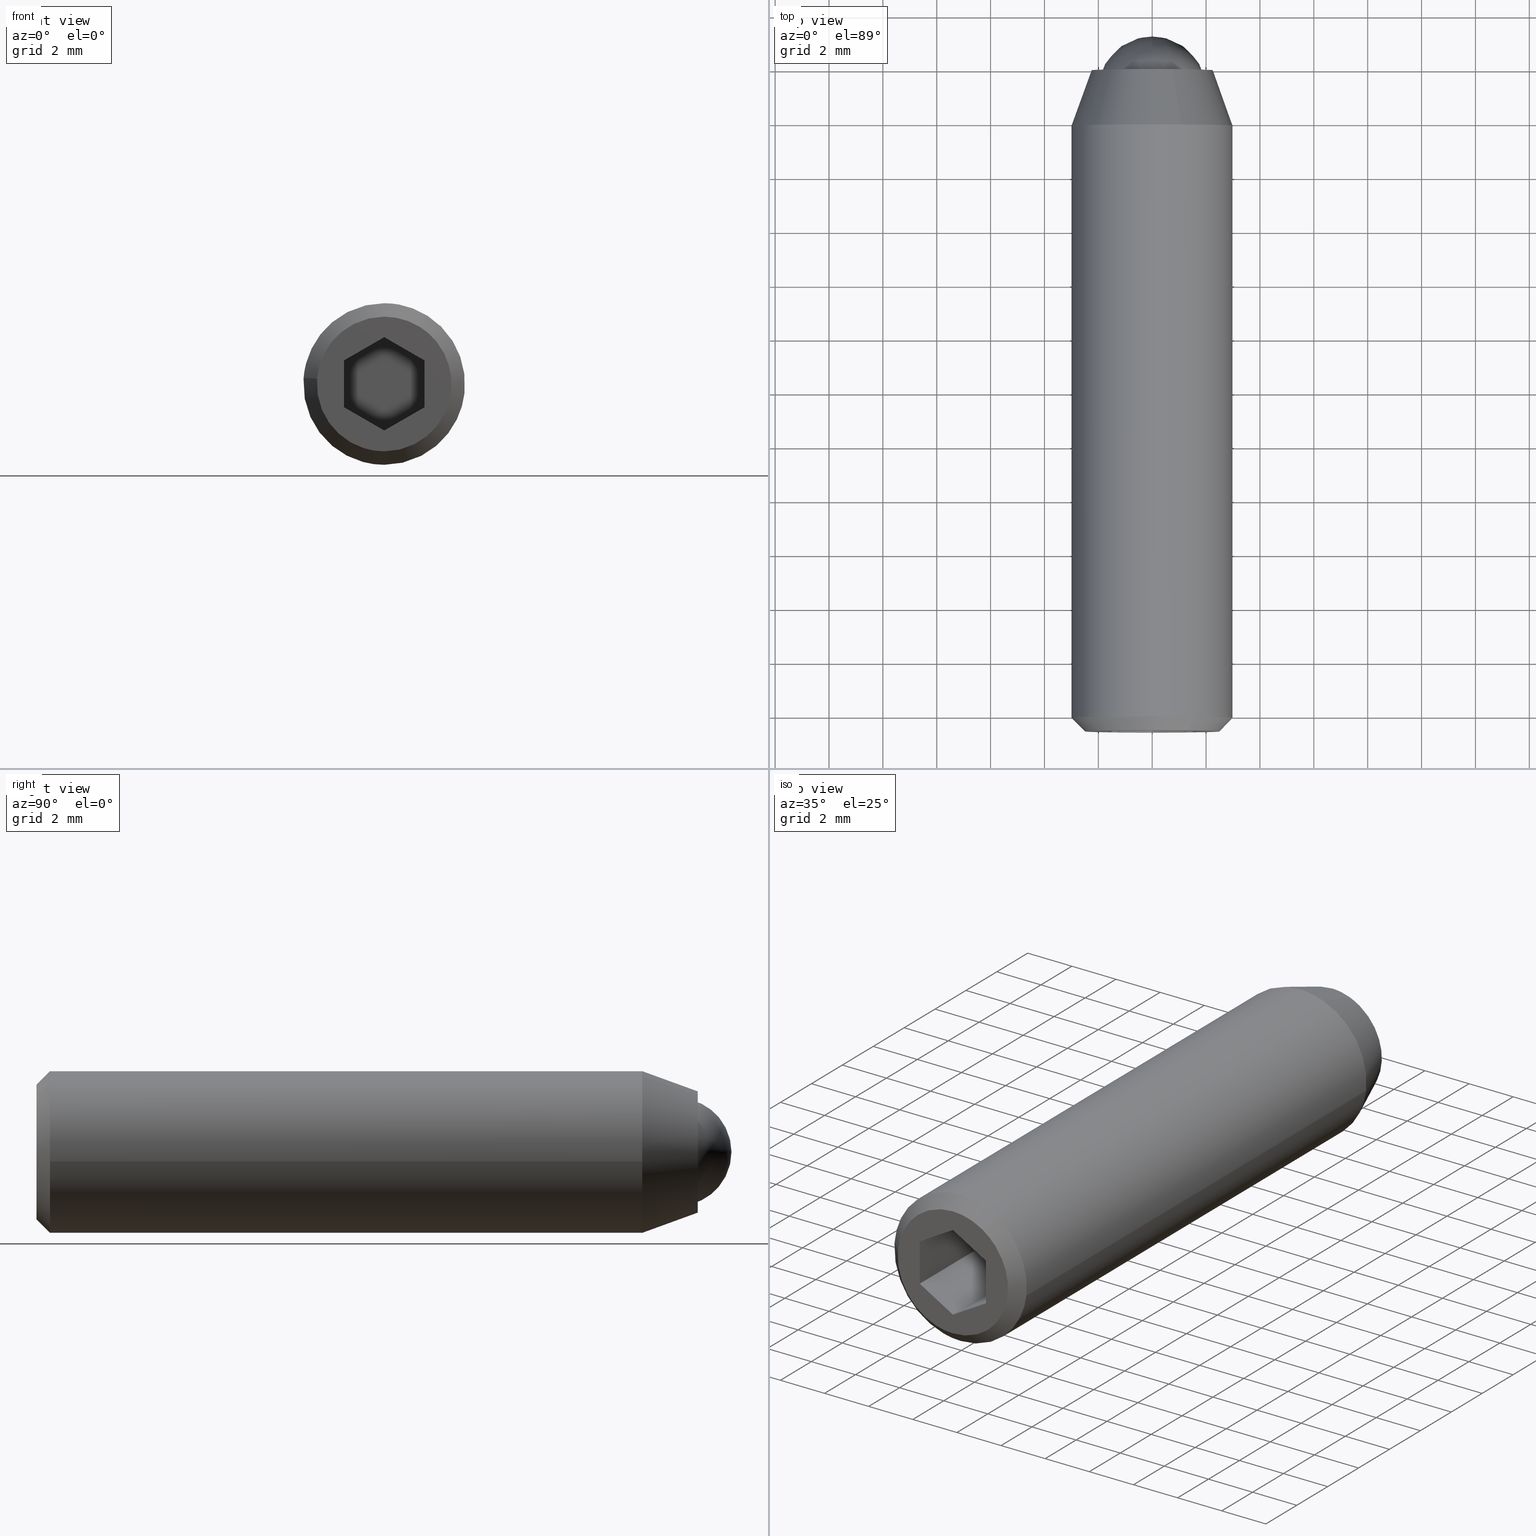
[diagram: canonical four-view strip — front | top / right | iso, engineering-drawing reading convention]
A machine part, canonical four-view strip (front | top / right | iso — engineering-drawing reading convention). The complete STEP part file that produces these views, byte-faithful:
ISO-10303-21;
HEADER;
/****************************************************************
 * Generated by software with PDE/Lib inside                    *
 * PDElib Version 4.4.1-0003, patched  Thursday August 19 11:58 *
 * International Technegroup Inc. (www.iti-oh.com)              *
 ****************************************************************/
FILE_DESCRIPTION((''),'2;1');
FILE_NAME('','2005-07-15T11:50:39',(''),(''),'','CADfix','');
FILE_SCHEMA(('AUTOMOTIVE_DESIGN'));
ENDSEC;
DATA;
#5=APPLICATION_CONTEXT('automotive design');
#6=APPLICATION_PROTOCOL_DEFINITION('Draft International Standard','automotive_design',1998,#5);
#7=PRODUCT_CONTEXT('None',#5,'mechanical');
#8=PRODUCT('body','','None',(#7));
#9=PRODUCT_RELATED_PRODUCT_CATEGORY('part','description',(#8));
#10=PRODUCT_DEFINITION_FORMATION('None','None',#8);
#11=PRODUCT_DEFINITION_CONTEXT('part definition',#5,'design');
#12=PRODUCT_DEFINITION('None','None',#10,#11);
#18=(NAMED_UNIT(*)PLANE_ANGLE_UNIT()SI_UNIT($,.RADIAN.));
#19=DIMENSIONAL_EXPONENTS(0.0,0.0,0.0,0.0,0.0,0.0,0.0);
#20=PLANE_ANGLE_MEASURE_WITH_UNIT(PLANE_ANGLE_MEASURE(0.017453292500000),#18);
#24=(CONVERSION_BASED_UNIT('DEGREE',#20)NAMED_UNIT(#19)PLANE_ANGLE_UNIT());
#28=(NAMED_UNIT(*)SI_UNIT($,.STERADIAN.)SOLID_ANGLE_UNIT());
#32=(LENGTH_UNIT()NAMED_UNIT(*)SI_UNIT(.MILLI.,.METRE.));
#34=UNCERTAINTY_MEASURE_WITH_UNIT(LENGTH_MEASURE(0.001000000000000),#32,'DISTANCE_ACCURACY_VALUE','');
#36=(GEOMETRIC_REPRESENTATION_CONTEXT(3)GLOBAL_UNCERTAINTY_ASSIGNED_CONTEXT((#34))GLOBAL_UNIT_ASSIGNED_CONTEXT((#24,#28,#32))REPRESENTATION_CONTEXT('None','None'));
#37=AXIS2_PLACEMENT_3D('',#38,#39,#40);
#38=CARTESIAN_POINT('',(0.0,0.0,0.0));
#39=DIRECTION('',(0.0,0.0,1.0));
#40=DIRECTION('',(1.0,0.0,0.0));
#41=ADVANCED_BREP_SHAPE_REPRESENTATION('',(#37,#953,#1164),#36);
#42=PRODUCT_DEFINITION_SHAPE('','',#12);
#43=SHAPE_DEFINITION_REPRESENTATION(#42,#41);
#44=CARTESIAN_POINT('',(-1.986019052727332,0.100000000000000,0.236068469313517));
#45=CARTESIAN_POINT('',(-1.992775230897211,0.100000000000000,0.179229457275955));
#46=CARTESIAN_POINT('',(-1.996269596843733,0.100000000000000,0.122097079069714));
#47=CARTESIAN_POINT('',(-2.118366675913447,0.100000000000000,-1.874172517774020));
#48=CARTESIAN_POINT('',(-0.122097079069714,0.100000000000000,-1.996269596843733));
#49=CARTESIAN_POINT('',(1.874172517774020,0.100000000000000,-2.118366675913447));
#50=CARTESIAN_POINT('',(1.996269596843733,0.100000000000000,-0.122097079069714));
#51=CARTESIAN_POINT('',(-1.986019052727332,-4.102500000000001,0.236068469313517));
#52=CARTESIAN_POINT('',(-1.992775230897211,-4.102500000000000,0.179229457275955));
#53=CARTESIAN_POINT('',(-1.996269596843733,-4.102500000000000,0.122097079069714));
#54=CARTESIAN_POINT('',(-2.118366675913447,-4.102499999999999,-1.874172517774020));
#55=CARTESIAN_POINT('',(-0.122097079069714,-4.102500000000000,-1.996269596843733));
#56=CARTESIAN_POINT('',(1.874172517774020,-4.102499999999999,-2.118366675913447));
#57=CARTESIAN_POINT('',(1.996269596843733,-4.102500000000000,-0.122097079069714));
#65=(BOUNDED_SURFACE()B_SPLINE_SURFACE(2,1,((#44,#51),(#45,#52),(#46,#53),(#47,#54),(#48,#55),(#49,#56),(#50,#57)),.UNSPECIFIED.,.F.,.F.,.U.)B_SPLINE_SURFACE_WITH_KNOTS((3,2,2,3),(2,2),(0.0,0.132548339959391,3.446256838944149,6.759965337928908),(0.0,4.202500000000001),.UNSPECIFIED.)GEOMETRIC_REPRESENTATION_ITEM()RATIONAL_B_SPLINE_SURFACE(((0.977505800795127,0.977505800795127),(0.988284271247462,0.988284271247462),(1.0,1.0),(0.707106781186548,0.707106781186548),(1.0,1.0),(0.707106781186548,0.707106781186548),(1.0,1.0)))REPRESENTATION_ITEM('')SURFACE());
#66=CARTESIAN_POINT('',(-1.986019052726100,-4.0,0.236068469323887));
#67=VERTEX_POINT('',#66);
#68=CARTESIAN_POINT('',(0.0,-4.0,-2.0));
#69=VERTEX_POINT('',#68);
#70=CARTESIAN_POINT('',(-1.986019052726100,-4.0,0.236068469323887));
#71=CARTESIAN_POINT('',(-2.000000000000000,-4.0,0.118448239314300));
#72=CARTESIAN_POINT('',(-2.0,-4.0,0.0));
#73=CARTESIAN_POINT('',(-2.000000000000000,-4.000000000000000,-2.000000000000000));
#74=CARTESIAN_POINT('',(0.0,-4.0,-2.0));
#82=(BOUNDED_CURVE()B_SPLINE_CURVE(2,(#70,#71,#72,#73,#74),.UNSPECIFIED.,.F.,.U.)B_SPLINE_CURVE_WITH_KNOTS((3,2,3),(0.229562473513879,0.250000000000000,0.500000000000000),.UNSPECIFIED.)CURVE()GEOMETRIC_REPRESENTATION_ITEM()RATIONAL_B_SPLINE_CURVE((0.956026754184427,0.976055948331580,1.0,0.707106781186548,1.0))REPRESENTATION_ITEM(''));
#83=EDGE_CURVE('',#67,#69,#82,.T.);
#84=ORIENTED_EDGE('',*,*,#83,.T.);
#85=CARTESIAN_POINT('',(1.996269596842803,-4.0,-0.122097079084937));
#86=VERTEX_POINT('',#85);
#87=CARTESIAN_POINT('',(0.0,-4.0,-2.0));
#88=CARTESIAN_POINT('',(1.881412133782633,-4.0,-2.000000000000000));
#89=CARTESIAN_POINT('',(1.996269596842803,-4.000000000000001,-0.122097079084937));
#97=(BOUNDED_CURVE()B_SPLINE_CURVE(2,(#87,#88,#89),.UNSPECIFIED.,.F.,.U.)B_SPLINE_CURVE_WITH_KNOTS((3,3),(0.500000000000000,0.739332962239336),.UNSPECIFIED.)CURVE()GEOMETRIC_REPRESENTATION_ITEM()RATIONAL_B_SPLINE_CURVE((1.0,0.719603993286250,0.976072041667560))REPRESENTATION_ITEM(''));
#98=EDGE_CURVE('',#69,#86,#97,.T.);
#99=ORIENTED_EDGE('',*,*,#98,.T.);
#100=CARTESIAN_POINT('',(1.996269596842803,1.387779E-016,-0.122097079084937));
#101=VERTEX_POINT('',#100);
#102=CARTESIAN_POINT('',(1.996269596842803,1.387779E-016,-0.122097079084937));
#103=CARTESIAN_POINT('',(1.996269596842803,-4.0,-0.122097079084937));
#104=QUASI_UNIFORM_CURVE('',1,(#102,#103),.UNSPECIFIED.,.F.,.U.);
#105=EDGE_CURVE('',#101,#86,#104,.T.);
#106=ORIENTED_EDGE('',*,*,#105,.F.);
#107=CARTESIAN_POINT('',(0.0,0.0,-2.0));
#108=VERTEX_POINT('',#107);
#109=CARTESIAN_POINT('',(0.0,0.0,-2.0));
#110=CARTESIAN_POINT('',(1.881412133782633,0.0,-2.000000000000000));
#111=CARTESIAN_POINT('',(1.996269596842803,1.387779E-016,-0.122097079084937));
#119=(BOUNDED_CURVE()B_SPLINE_CURVE(2,(#109,#110,#111),.UNSPECIFIED.,.F.,.U.)B_SPLINE_CURVE_WITH_KNOTS((3,3),(0.500000000000000,0.739332962239336),.UNSPECIFIED.)CURVE()GEOMETRIC_REPRESENTATION_ITEM()RATIONAL_B_SPLINE_CURVE((1.0,0.719603993286250,0.976072041667560))REPRESENTATION_ITEM(''));
#120=EDGE_CURVE('',#108,#101,#119,.T.);
#121=ORIENTED_EDGE('',*,*,#120,.F.);
#122=CARTESIAN_POINT('',(-1.986019052726100,1.419714E-016,0.236068469323887));
#123=VERTEX_POINT('',#122);
#124=CARTESIAN_POINT('',(-1.986019052726100,1.419714E-016,0.236068469323887));
#125=CARTESIAN_POINT('',(-2.000000000000000,0.0,0.118448239314300));
#126=CARTESIAN_POINT('',(-2.0,0.0,0.0));
#127=CARTESIAN_POINT('',(-2.000000000000000,0.0,-2.000000000000000));
#128=CARTESIAN_POINT('',(0.0,0.0,-2.0));
#136=(BOUNDED_CURVE()B_SPLINE_CURVE(2,(#124,#125,#126,#127,#128),.UNSPECIFIED.,.F.,.U.)B_SPLINE_CURVE_WITH_KNOTS((3,2,3),(0.229562473513879,0.250000000000000,0.500000000000000),.UNSPECIFIED.)CURVE()GEOMETRIC_REPRESENTATION_ITEM()RATIONAL_B_SPLINE_CURVE((0.956026754184427,0.976055948331580,1.0,0.707106781186548,1.0))REPRESENTATION_ITEM(''));
#137=EDGE_CURVE('',#123,#108,#136,.T.);
#138=ORIENTED_EDGE('',*,*,#137,.F.);
#139=CARTESIAN_POINT('',(-1.986019052726100,1.419714E-016,0.236068469323887));
#140=CARTESIAN_POINT('',(-1.986019052726100,-4.0,0.236068469323887));
#141=QUASI_UNIFORM_CURVE('',1,(#139,#140),.UNSPECIFIED.,.F.,.U.);
#142=EDGE_CURVE('',#123,#67,#141,.T.);
#143=ORIENTED_EDGE('',*,*,#142,.T.);
#144=EDGE_LOOP('',(#84,#99,#106,#121,#138,#143));
#145=FACE_OUTER_BOUND('',#144,.T.);
#146=ADVANCED_FACE('',(#145),#65,.F.);
#147=CARTESIAN_POINT('',(1.996269596843733,0.100000000000000,-0.122097079069714));
#148=CARTESIAN_POINT('',(2.118366675913447,0.100000000000000,1.874172517774020));
#149=CARTESIAN_POINT('',(0.122097079069714,0.100000000000000,1.996269596843733));
#150=CARTESIAN_POINT('',(-1.763086981679002,0.100000000000000,2.111572393465055));
#151=CARTESIAN_POINT('',(-1.986019052727332,0.100000000000000,0.236068469313517));
#152=CARTESIAN_POINT('',(1.996269596843733,-4.102500000000000,-0.122097079069714));
#153=CARTESIAN_POINT('',(2.118366675913447,-4.102499999999999,1.874172517774020));
#154=CARTESIAN_POINT('',(0.122097079069714,-4.102500000000000,1.996269596843733));
#155=CARTESIAN_POINT('',(-1.763086981679002,-4.102500000000000,2.111572393465055));
#156=CARTESIAN_POINT('',(-1.986019052727332,-4.102500000000001,0.236068469313517));
#164=(BOUNDED_SURFACE()B_SPLINE_SURFACE(2,1,((#147,#152),(#148,#153),(#149,#154),(#150,#155),(#151,#156)),.UNSPECIFIED.,.F.,.F.,.U.)B_SPLINE_SURFACE_WITH_KNOTS((3,2,3),(2,2),(0.0,3.313708498984759,6.494868658010128),(0.0,4.202500000000001),.UNSPECIFIED.)GEOMETRIC_REPRESENTATION_ITEM()RATIONAL_B_SPLINE_SURFACE(((1.0,1.0),(0.707106781186548,0.707106781186548),(1.0,1.0),(0.718822509939086,0.718822509939086),(0.977505800795127,0.977505800795127)))REPRESENTATION_ITEM('')SURFACE());
#165=CARTESIAN_POINT('',(0.0,-4.0,2.0));
#166=VERTEX_POINT('',#165);
#167=CARTESIAN_POINT('',(0.0,-4.0,2.0));
#168=CARTESIAN_POINT('',(-1.776349051884055,-4.0,2.000000000000000));
#169=CARTESIAN_POINT('',(-1.986019052726100,-4.0,0.236068469323887));
#177=(BOUNDED_CURVE()B_SPLINE_CURVE(2,(#167,#168,#169),.UNSPECIFIED.,.F.,.U.)B_SPLINE_CURVE_WITH_KNOTS((3,3),(0.0,0.229562473513880),.UNSPECIFIED.)CURVE()GEOMETRIC_REPRESENTATION_ITEM()RATIONAL_B_SPLINE_CURVE((1.0,0.731050832854968,0.956026754184427))REPRESENTATION_ITEM(''));
#178=EDGE_CURVE('',#166,#67,#177,.T.);
#179=ORIENTED_EDGE('',*,*,#178,.T.);
#180=ORIENTED_EDGE('',*,*,#142,.F.);
#181=CARTESIAN_POINT('',(0.0,0.0,2.0));
#182=VERTEX_POINT('',#181);
#183=CARTESIAN_POINT('',(0.0,0.0,2.0));
#184=CARTESIAN_POINT('',(-1.776349051884055,0.0,2.000000000000000));
#185=CARTESIAN_POINT('',(-1.986019052726100,1.419714E-016,0.236068469323887));
#193=(BOUNDED_CURVE()B_SPLINE_CURVE(2,(#183,#184,#185),.UNSPECIFIED.,.F.,.U.)B_SPLINE_CURVE_WITH_KNOTS((3,3),(0.0,0.229562473513880),.UNSPECIFIED.)CURVE()GEOMETRIC_REPRESENTATION_ITEM()RATIONAL_B_SPLINE_CURVE((1.0,0.731050832854968,0.956026754184427))REPRESENTATION_ITEM(''));
#194=EDGE_CURVE('',#182,#123,#193,.T.);
#195=ORIENTED_EDGE('',*,*,#194,.F.);
#196=CARTESIAN_POINT('',(1.996269596842803,1.387779E-016,-0.122097079084937));
#197=CARTESIAN_POINT('',(2.000000000000000,0.0,-0.061105526612444));
#198=CARTESIAN_POINT('',(2.0,0.0,0.0));
#199=CARTESIAN_POINT('',(2.000000000000000,0.0,2.000000000000000));
#200=CARTESIAN_POINT('',(0.0,0.0,2.0));
#208=(BOUNDED_CURVE()B_SPLINE_CURVE(2,(#196,#197,#198,#199,#200),.UNSPECIFIED.,.F.,.U.)B_SPLINE_CURVE_WITH_KNOTS((3,2,3),(0.739332962239337,0.750000000000000,1.0),.UNSPECIFIED.)CURVE()GEOMETRIC_REPRESENTATION_ITEM()RATIONAL_B_SPLINE_CURVE((0.976072041667562,0.987502787900299,1.0,0.707106781186548,1.0))REPRESENTATION_ITEM(''));
#209=EDGE_CURVE('',#101,#182,#208,.T.);
#210=ORIENTED_EDGE('',*,*,#209,.F.);
#211=ORIENTED_EDGE('',*,*,#105,.T.);
#212=CARTESIAN_POINT('',(1.996269596842803,-4.000000000000001,-0.122097079084937));
#213=CARTESIAN_POINT('',(2.000000000000000,-4.000000000000001,-0.061105526612444));
#214=CARTESIAN_POINT('',(2.0,-4.0,0.0));
#215=CARTESIAN_POINT('',(2.000000000000000,-4.000000000000000,2.000000000000000));
#216=CARTESIAN_POINT('',(0.0,-4.0,2.0));
#224=(BOUNDED_CURVE()B_SPLINE_CURVE(2,(#212,#213,#214,#215,#216),.UNSPECIFIED.,.F.,.U.)B_SPLINE_CURVE_WITH_KNOTS((3,2,3),(0.739332962239337,0.750000000000000,1.0),.UNSPECIFIED.)CURVE()GEOMETRIC_REPRESENTATION_ITEM()RATIONAL_B_SPLINE_CURVE((0.976072041667562,0.987502787900299,1.0,0.707106781186548,1.0))REPRESENTATION_ITEM(''));
#225=EDGE_CURVE('',#86,#166,#224,.T.);
#226=ORIENTED_EDGE('',*,*,#225,.T.);
#227=EDGE_LOOP('',(#179,#180,#195,#210,#211,#226));
#228=FACE_OUTER_BOUND('',#227,.T.);
#229=ADVANCED_FACE('',(#228),#164,.F.);
#230=CARTESIAN_POINT('',(1.337903848697429,-24.562499999999996,2.097062121550188));
#231=CARTESIAN_POINT('',(2.597013232677684,-24.562499999999996,1.293763414541468));
#232=CARTESIAN_POINT('',(2.479831867661150,-24.562500000000000,-0.195167000623016));
#233=CARTESIAN_POINT('',(2.284664867038134,-24.562500000000007,-2.674998868284166));
#234=CARTESIAN_POINT('',(-0.195167000623015,-24.562500000000000,-2.479831867661151));
#235=CARTESIAN_POINT('',(-2.674998868284166,-24.562500000000007,-2.284664867038136));
#236=CARTESIAN_POINT('',(-2.479831867661150,-24.562500000000000,0.195167000623015));
#237=CARTESIAN_POINT('',(1.620443593629644,-24.037187499999987,2.539921597219278));
#238=CARTESIAN_POINT('',(3.145452836211766,-24.037187499999995,1.566981542662605));
#239=CARTESIAN_POINT('',(3.003525004537846,-24.037187500000002,-0.236382544347551));
#240=CARTESIAN_POINT('',(2.767142460190296,-24.037187499999995,-3.239907548885397));
#241=CARTESIAN_POINT('',(-0.236382544347550,-24.037187500000002,-3.003525004537847));
#242=CARTESIAN_POINT('',(-3.239907548885395,-24.037187499999995,-2.767142460190296));
#243=CARTESIAN_POINT('',(-3.003525004537846,-24.037187500000002,0.236382544347549));
#251=(BOUNDED_SURFACE()B_SPLINE_SURFACE(2,1,((#230,#237),(#231,#238),(#232,#239),(#233,#240),(#234,#241),(#235,#242),(#236,#243)),.UNSPECIFIED.,.F.,.F.,.U.)B_SPLINE_SURFACE_WITH_KNOTS((3,2,2,3),(2,2),(0.0,3.394418011613164,8.386209205161936,13.378000398710711),(0.0,1.0),.UNSPECIFIED.)GEOMETRIC_REPRESENTATION_ITEM()RATIONAL_B_SPLINE_SURFACE(((0.872532871172386,0.872532871172386),(0.800832611206852,0.800832611206852),(1.0,1.0),(0.707106781186548,0.707106781186548),(1.0,1.0),(0.707106781186548,0.707106781186548),(1.0,1.0)))REPRESENTATION_ITEM('')SURFACE());
#252=CARTESIAN_POINT('',(2.979029056470349,-24.049999999999990,-0.354098687782129));
#253=VERTEX_POINT('',#252);
#254=CARTESIAN_POINT('',(1.613552380351205,-24.049999999999251,2.529120146586055));
#255=VERTEX_POINT('',#254);
#256=CARTESIAN_POINT('',(2.979029056470349,-24.049999999999994,-0.354098687782129));
#257=CARTESIAN_POINT('',(3.000000000000000,-24.050000000000001,-0.177670329632749));
#258=CARTESIAN_POINT('',(3.0,-24.050000000000001,-6.765950E-016));
#259=CARTESIAN_POINT('',(3.0,-24.049999999999997,1.644580968025334));
#260=CARTESIAN_POINT('',(1.613552380351205,-24.049999999999251,2.529120146586055));
#268=(BOUNDED_CURVE()B_SPLINE_CURVE(2,(#256,#257,#258,#259,#260),.UNSPECIFIED.,.F.,.U.)B_SPLINE_CURVE_WITH_KNOTS((3,2,3),(0.229562701358004,0.250000000000000,0.407950112626098),.UNSPECIFIED.)CURVE()GEOMETRIC_REPRESENTATION_ITEM()RATIONAL_B_SPLINE_CURVE((0.956027200768721,0.976056215267575,1.0,0.814949932403979,0.863729296954027))REPRESENTATION_ITEM(''));
#269=EDGE_CURVE('',#253,#255,#268,.T.);
#270=ORIENTED_EDGE('',*,*,#269,.T.);
#271=CARTESIAN_POINT('',(1.344626983622767,-24.549999999999550,2.107600122156899));
#272=VERTEX_POINT('',#271);
#273=CARTESIAN_POINT('',(1.344626983622767,-24.549999999999550,2.107600122156899));
#274=CARTESIAN_POINT('',(1.613552380351205,-24.049999999999251,2.529120146586055));
#275=QUASI_UNIFORM_CURVE('',1,(#273,#274),.UNSPECIFIED.,.F.,.U.);
#276=EDGE_CURVE('',#272,#255,#275,.T.);
#277=ORIENTED_EDGE('',*,*,#276,.F.);
#278=CARTESIAN_POINT('',(0.0,-24.550000000000001,-2.500000000000001));
#279=VERTEX_POINT('',#278);
#280=CARTESIAN_POINT('',(0.0,-24.550000000000001,-2.500000000000001));
#281=CARTESIAN_POINT('',(2.500000000000000,-24.549999999999997,-2.500000000000001));
#282=CARTESIAN_POINT('',(2.500000000000000,-24.550000000000001,-6.765950E-016));
#283=CARTESIAN_POINT('',(2.500000000000001,-24.549999999999997,1.370484140025952));
#284=CARTESIAN_POINT('',(1.344626983622767,-24.549999999999553,2.107600122156898));
#292=(BOUNDED_CURVE()B_SPLINE_CURVE(2,(#280,#281,#282,#283,#284),.UNSPECIFIED.,.F.,.U.)B_SPLINE_CURVE_WITH_KNOTS((3,2,3),(0.0,0.250000000000000,0.407950112626553),.UNSPECIFIED.)CURVE()GEOMETRIC_REPRESENTATION_ITEM()RATIONAL_B_SPLINE_CURVE((1.0,0.707106781186548,1.0,0.814949932403446,0.863729296954308))REPRESENTATION_ITEM(''));
#293=EDGE_CURVE('',#279,#272,#292,.T.);
#294=ORIENTED_EDGE('',*,*,#293,.F.);
#295=CARTESIAN_POINT('',(-2.492293334333787,-24.549999999997588,0.196147739338082));
#296=VERTEX_POINT('',#295);
#297=CARTESIAN_POINT('',(-2.492293334333788,-24.549999999997581,0.196147739338082));
#298=CARTESIAN_POINT('',(-2.500000000000000,-24.549999999999994,0.098225267537538));
#299=CARTESIAN_POINT('',(-2.500000000000000,-24.550000000000001,-6.765950E-016));
#300=CARTESIAN_POINT('',(-2.500000000000000,-24.549999999999997,-2.500000000000001));
#301=CARTESIAN_POINT('',(0.0,-24.550000000000001,-2.500000000000001));
#309=(BOUNDED_CURVE()B_SPLINE_CURVE(2,(#297,#298,#299,#300,#301),.UNSPECIFIED.,.F.,.U.)B_SPLINE_CURVE_WITH_KNOTS((3,2,3),(0.736331300630252,0.750000000000000,1.0),.UNSPECIFIED.)CURVE()GEOMETRIC_REPRESENTATION_ITEM()RATIONAL_B_SPLINE_CURVE((0.969723356166568,0.983986122578405,1.0,0.707106781186548,1.0))REPRESENTATION_ITEM(''));
#310=EDGE_CURVE('',#296,#279,#309,.T.);
#311=ORIENTED_EDGE('',*,*,#310,.F.);
#312=CARTESIAN_POINT('',(-2.990752001202611,-24.049999999991918,0.235377287245564));
#313=VERTEX_POINT('',#312);
#314=CARTESIAN_POINT('',(-2.492293334333787,-24.549999999997588,0.196147739338082));
#315=CARTESIAN_POINT('',(-2.990752001202611,-24.049999999991918,0.235377287245564));
#316=QUASI_UNIFORM_CURVE('',1,(#314,#315),.UNSPECIFIED.,.F.,.U.);
#317=EDGE_CURVE('',#296,#313,#316,.T.);
#318=ORIENTED_EDGE('',*,*,#317,.T.);
#319=CARTESIAN_POINT('',(-2.994404684975035,-24.050000000000011,0.183140881774212));
#320=VERTEX_POINT('',#319);
#321=CARTESIAN_POINT('',(-2.990752001202611,-24.049999999991911,0.235377287245564));
#322=CARTESIAN_POINT('',(-2.992806293846944,-24.050000000000001,0.209275024229323));
#323=CARTESIAN_POINT('',(-2.994404684975035,-24.050000000000011,0.183140881774212));
#331=(BOUNDED_CURVE()B_SPLINE_CURVE(2,(#321,#322,#323),.UNSPECIFIED.,.F.,.U.)B_SPLINE_CURVE_WITH_KNOTS((3,3),(0.736331300625729,0.739333235192756),.UNSPECIFIED.)CURVE()GEOMETRIC_REPRESENTATION_ITEM()RATIONAL_B_SPLINE_CURVE((0.969723356157127,0.972855760371544,0.976072626659396))REPRESENTATION_ITEM(''));
#332=EDGE_CURVE('',#313,#320,#331,.T.);
#333=ORIENTED_EDGE('',*,*,#332,.T.);
#334=CARTESIAN_POINT('',(0.0,-24.050000000000001,-3.000000000000001));
#335=VERTEX_POINT('',#334);
#336=CARTESIAN_POINT('',(-2.994404684975035,-24.050000000000011,0.183140881774212));
#337=CARTESIAN_POINT('',(-3.0,-24.049999999999997,0.091655914840068));
#338=CARTESIAN_POINT('',(-3.0,-24.050000000000001,-6.765950E-016));
#339=CARTESIAN_POINT('',(-3.0,-24.050000000000004,-3.0));
#340=CARTESIAN_POINT('',(0.0,-24.050000000000001,-3.000000000000001));
#348=(BOUNDED_CURVE()B_SPLINE_CURVE(2,(#336,#337,#338,#339,#340),.UNSPECIFIED.,.F.,.U.)B_SPLINE_CURVE_WITH_KNOTS((3,2,3),(0.739333235192756,0.750000000000000,1.0),.UNSPECIFIED.)CURVE()GEOMETRIC_REPRESENTATION_ITEM()RATIONAL_B_SPLINE_CURVE((0.976072626659396,0.987503107685121,1.0,0.707106781186548,1.0))REPRESENTATION_ITEM(''));
#349=EDGE_CURVE('',#320,#335,#348,.T.);
#350=ORIENTED_EDGE('',*,*,#349,.T.);
#351=CARTESIAN_POINT('',(0.0,-24.050000000000001,-3.000000000000001));
#352=CARTESIAN_POINT('',(2.664527195330646,-24.049999999999997,-3.000000000000001));
#353=CARTESIAN_POINT('',(2.979029056470349,-24.049999999999994,-0.354098687782129));
#361=(BOUNDED_CURVE()B_SPLINE_CURVE(2,(#351,#352,#353),.UNSPECIFIED.,.F.,.U.)B_SPLINE_CURVE_WITH_KNOTS((3,3),(0.0,0.229562701358004),.UNSPECIFIED.)CURVE()GEOMETRIC_REPRESENTATION_ITEM()RATIONAL_B_SPLINE_CURVE((1.0,0.731050565918972,0.956027200768721))REPRESENTATION_ITEM(''));
#362=EDGE_CURVE('',#335,#253,#361,.T.);
#363=ORIENTED_EDGE('',*,*,#362,.T.);
#364=EDGE_LOOP('',(#270,#277,#294,#311,#318,#333,#350,#363));
#365=FACE_OUTER_BOUND('',#364,.T.);
#366=ADVANCED_FACE('',(#365),#251,.T.);
#367=CARTESIAN_POINT('',(-2.479831867661150,-24.562500000000000,0.195167000623015));
#368=CARTESIAN_POINT('',(-2.284664867038134,-24.562500000000007,2.674998868284166));
#369=CARTESIAN_POINT('',(0.195167000623015,-24.562500000000000,2.479831867661150));
#370=CARTESIAN_POINT('',(0.814319478020442,-24.562500000000007,2.431103510905281));
#371=CARTESIAN_POINT('',(1.337903848697429,-24.562499999999996,2.097062121550188));
#372=CARTESIAN_POINT('',(-3.003525004537846,-24.037187500000002,0.236382544347549));
#373=CARTESIAN_POINT('',(-2.767142460190296,-24.037187499999995,3.239907548885395));
#374=CARTESIAN_POINT('',(0.236382544347550,-24.037187500000002,3.003525004537845));
#375=CARTESIAN_POINT('',(0.986288201959185,-24.037187499999995,2.944506149326371));
#376=CARTESIAN_POINT('',(1.620443593629644,-24.037187499999987,2.539921597219278));
#384=(BOUNDED_SURFACE()B_SPLINE_SURFACE(2,1,((#367,#372),(#368,#373),(#369,#374),(#370,#375),(#371,#376)),.UNSPECIFIED.,.F.,.F.,.U.)B_SPLINE_SURFACE_WITH_KNOTS((3,2,3),(2,2),(0.0,4.991791193548773,6.589164375484380),(0.0,1.0),.UNSPECIFIED.)GEOMETRIC_REPRESENTATION_ITEM()RATIONAL_B_SPLINE_SURFACE(((1.0,1.0),(0.707106781186548,0.707106781186548),(1.0,1.0),(0.906274169979695,0.906274169979695),(0.872532871172386,0.872532871172386)))REPRESENTATION_ITEM('')SURFACE());
#385=CARTESIAN_POINT('',(0.0,-24.050000000000001,2.999999999999999));
#386=VERTEX_POINT('',#385);
#387=CARTESIAN_POINT('',(1.613552380351205,-24.049999999999251,2.529120146586055));
#388=CARTESIAN_POINT('',(0.875484166153485,-24.050000000000001,2.999999999999999));
#389=CARTESIAN_POINT('',(0.0,-24.050000000000001,2.999999999999999));
#397=(BOUNDED_CURVE()B_SPLINE_CURVE(2,(#387,#388,#389),.UNSPECIFIED.,.F.,.U.)B_SPLINE_CURVE_WITH_KNOTS((3,3),(0.407950112626098,0.500000000000000),.UNSPECIFIED.)CURVE()GEOMETRIC_REPRESENTATION_ITEM()RATIONAL_B_SPLINE_CURVE((0.863729296954027,0.892156848782568,1.0))REPRESENTATION_ITEM(''));
#398=EDGE_CURVE('',#255,#386,#397,.T.);
#399=ORIENTED_EDGE('',*,*,#398,.T.);
#400=CARTESIAN_POINT('',(0.0,-24.050000000000001,2.999999999999999));
#401=CARTESIAN_POINT('',(-2.773171474860424,-24.049999999999997,2.999999999999999));
#402=CARTESIAN_POINT('',(-2.990752001202611,-24.049999999991915,0.235377287245564));
#410=(BOUNDED_CURVE()B_SPLINE_CURVE(2,(#400,#401,#402),.UNSPECIFIED.,.F.,.U.)B_SPLINE_CURVE_WITH_KNOTS((3,3),(0.500000000000000,0.736331300625729),.UNSPECIFIED.)CURVE()GEOMETRIC_REPRESENTATION_ITEM()RATIONAL_B_SPLINE_CURVE((1.0,0.723120658613442,0.969723356157129))REPRESENTATION_ITEM(''));
#411=EDGE_CURVE('',#386,#313,#410,.T.);
#412=ORIENTED_EDGE('',*,*,#411,.T.);
#413=ORIENTED_EDGE('',*,*,#317,.F.);
#414=CARTESIAN_POINT('',(0.0,-24.550000000000001,2.499999999999999));
#415=VERTEX_POINT('',#414);
#416=CARTESIAN_POINT('',(0.0,-24.550000000000001,2.499999999999999));
#417=CARTESIAN_POINT('',(-2.310976229111517,-24.549999999999997,2.499999999999999));
#418=CARTESIAN_POINT('',(-2.492293334333787,-24.549999999997581,0.196147739338082));
#426=(BOUNDED_CURVE()B_SPLINE_CURVE(2,(#416,#417,#418),.UNSPECIFIED.,.F.,.U.)B_SPLINE_CURVE_WITH_KNOTS((3,3),(0.500000000000000,0.736331300630253),.UNSPECIFIED.)CURVE()GEOMETRIC_REPRESENTATION_ITEM()RATIONAL_B_SPLINE_CURVE((1.0,0.723120658608143,0.969723356166568))REPRESENTATION_ITEM(''));
#427=EDGE_CURVE('',#415,#296,#426,.T.);
#428=ORIENTED_EDGE('',*,*,#427,.F.);
#429=CARTESIAN_POINT('',(1.344626983622768,-24.549999999999550,2.107600122156899));
#430=CARTESIAN_POINT('',(0.729570138457195,-24.549999999999997,2.499999999999999));
#431=CARTESIAN_POINT('',(0.0,-24.550000000000001,2.499999999999999));
#439=(BOUNDED_CURVE()B_SPLINE_CURVE(2,(#429,#430,#431),.UNSPECIFIED.,.F.,.U.)B_SPLINE_CURVE_WITH_KNOTS((3,3),(0.407950112626553,0.500000000000000),.UNSPECIFIED.)CURVE()GEOMETRIC_REPRESENTATION_ITEM()RATIONAL_B_SPLINE_CURVE((0.863729296954308,0.892156848783102,1.0))REPRESENTATION_ITEM(''));
#440=EDGE_CURVE('',#272,#415,#439,.T.);
#441=ORIENTED_EDGE('',*,*,#440,.F.);
#442=ORIENTED_EDGE('',*,*,#276,.T.);
#443=EDGE_LOOP('',(#399,#412,#413,#428,#441,#442));
#444=FACE_OUTER_BOUND('',#443,.T.);
#445=ADVANCED_FACE('',(#444),#384,.T.);
#446=CARTESIAN_POINT('',(0.784547605361196,0.051515200000000,2.088770360145418));
#447=CARTESIAN_POINT('',(0.470770214140005,0.051515200000000,2.206625968208495));
#448=CARTESIAN_POINT('',(0.136214553837150,0.051515200000000,2.227088268978792));
#449=CARTESIAN_POINT('',(-2.090873715141643,0.051515200000000,2.363302822815943));
#450=CARTESIAN_POINT('',(-2.227088268978793,0.051515200000000,0.136214553837149));
#451=CARTESIAN_POINT('',(1.061611581120054,-2.113411080000001,2.826422245734585));
#452=CARTESIAN_POINT('',(0.637023308671380,-2.113411080000001,2.985898710342624));
#453=CARTESIAN_POINT('',(0.184318895223757,-2.113411080000001,3.013587298422769));
#454=CARTESIAN_POINT('',(-2.829268403199012,-2.113411080000001,3.197906193646526));
#455=CARTESIAN_POINT('',(-3.013587298422770,-2.113411080000001,0.184318895223756));
#463=(BOUNDED_SURFACE()B_SPLINE_SURFACE(2,1,((#446,#451),(#447,#452),(#448,#453),(#449,#454),(#450,#455)),.UNSPECIFIED.,.F.,.F.,.U.)B_SPLINE_SURFACE_WITH_KNOTS((3,2,3),(2,2),(0.0,1.000481083216914,6.002886499301483),(0.0,2.303866434672635),.UNSPECIFIED.)GEOMETRIC_REPRESENTATION_ITEM()RATIONAL_B_SPLINE_SURFACE(((0.906274169979695,0.906274169979695),(0.941421356237309,0.941421356237309),(1.0,1.0),(0.707106781186548,0.707106781186548),(1.0,1.0)))REPRESENTATION_ITEM('')SURFACE());
#464=CARTESIAN_POINT('',(1.054853923190107,-2.060608000002979,2.808430736325349));
#465=VERTEX_POINT('',#464);
#466=CARTESIAN_POINT('',(0.0,-2.060608000000000,2.999999999999999));
#467=VERTEX_POINT('',#466);
#468=CARTESIAN_POINT('',(1.054853923190107,-2.060608000002980,2.808430736325348));
#469=CARTESIAN_POINT('',(0.544822158216843,-2.060608000000000,2.999999999999999));
#470=CARTESIAN_POINT('',(0.0,-2.060608000000000,2.999999999999999));
#478=(BOUNDED_CURVE()B_SPLINE_CURVE(2,(#468,#469,#470),.UNSPECIFIED.,.F.,.U.)B_SPLINE_CURVE_WITH_KNOTS((3,3),(0.440284170897221,0.500000000000000),.UNSPECIFIED.)CURVE()GEOMETRIC_REPRESENTATION_ITEM()RATIONAL_B_SPLINE_CURVE((0.893499554633700,0.930038554399892,1.0))REPRESENTATION_ITEM(''));
#479=EDGE_CURVE('',#465,#467,#478,.T.);
#480=ORIENTED_EDGE('',*,*,#479,.F.);
#481=CARTESIAN_POINT('',(0.791140442397695,-3.218887E-012,2.106323052242475));
#482=VERTEX_POINT('',#481);
#483=CARTESIAN_POINT('',(0.791140442397695,-3.218887E-012,2.106323052242475));
#484=CARTESIAN_POINT('',(1.054853923190107,-2.060608000002979,2.808430736325349));
#485=QUASI_UNIFORM_CURVE('',1,(#483,#484),.UNSPECIFIED.,.F.,.U.);
#486=EDGE_CURVE('',#482,#465,#485,.T.);
#487=ORIENTED_EDGE('',*,*,#486,.F.);
#488=CARTESIAN_POINT('',(0.0,0.0,2.249999999999999));
#489=VERTEX_POINT('',#488);
#490=CARTESIAN_POINT('',(0.791140442397695,-3.218887E-012,2.106323052242474));
#491=CARTESIAN_POINT('',(0.408616618668138,0.0,2.249999999999999));
#492=CARTESIAN_POINT('',(0.0,0.0,2.249999999999999));
#500=(BOUNDED_CURVE()B_SPLINE_CURVE(2,(#490,#491,#492),.UNSPECIFIED.,.F.,.U.)B_SPLINE_CURVE_WITH_KNOTS((3,3),(0.440284170896473,0.500000000000000),.UNSPECIFIED.)CURVE()GEOMETRIC_REPRESENTATION_ITEM()RATIONAL_B_SPLINE_CURVE((0.893499554632784,0.930038554399016,1.0))REPRESENTATION_ITEM(''));
#501=EDGE_CURVE('',#482,#489,#500,.T.);
#502=ORIENTED_EDGE('',*,*,#501,.T.);
#503=CARTESIAN_POINT('',(-2.245803296449246,-1.485565E-012,0.137359213961566));
#504=VERTEX_POINT('',#503);
#505=CARTESIAN_POINT('',(0.0,0.0,2.249999999999999));
#506=CARTESIAN_POINT('',(-2.116588650522518,0.0,2.250000000000000));
#507=CARTESIAN_POINT('',(-2.245803296449245,-1.485565E-012,0.137359213961566));
#515=(BOUNDED_CURVE()B_SPLINE_CURVE(2,(#505,#506,#507),.UNSPECIFIED.,.F.,.U.)B_SPLINE_CURVE_WITH_KNOTS((3,3),(0.500000000000000,0.739332962240724),.UNSPECIFIED.)CURVE()GEOMETRIC_REPRESENTATION_ITEM()RATIONAL_B_SPLINE_CURVE((1.0,0.719603993284624,0.976072041670534))REPRESENTATION_ITEM(''));
#516=EDGE_CURVE('',#489,#504,#515,.T.);
#517=ORIENTED_EDGE('',*,*,#516,.T.);
#518=CARTESIAN_POINT('',(-2.994404537156918,-2.060607996040597,0.183143275066042));
#519=VERTEX_POINT('',#518);
#520=CARTESIAN_POINT('',(-2.245803296449246,-1.485565E-012,0.137359213961566));
#521=CARTESIAN_POINT('',(-2.994404537156918,-2.060607996040597,0.183143275066042));
#522=QUASI_UNIFORM_CURVE('',1,(#520,#521),.UNSPECIFIED.,.F.,.U.);
#523=EDGE_CURVE('',#504,#519,#522,.T.);
#524=ORIENTED_EDGE('',*,*,#523,.T.);
#525=CARTESIAN_POINT('',(0.0,-2.060608000000000,2.999999999999999));
#526=CARTESIAN_POINT('',(-2.822120413462678,-2.060608000000000,3.000000000000000));
#527=CARTESIAN_POINT('',(-2.994404537156918,-2.060607996040598,0.183143275066042));
#535=(BOUNDED_CURVE()B_SPLINE_CURVE(2,(#525,#526,#527),.UNSPECIFIED.,.F.,.U.)B_SPLINE_CURVE_WITH_KNOTS((3,3),(0.500000000000000,0.739333097278809),.UNSPECIFIED.)CURVE()GEOMETRIC_REPRESENTATION_ITEM()RATIONAL_B_SPLINE_CURVE((1.0,0.719603835077665,0.976072331083028))REPRESENTATION_ITEM(''));
#536=EDGE_CURVE('',#467,#519,#535,.T.);
#537=ORIENTED_EDGE('',*,*,#536,.F.);
#538=EDGE_LOOP('',(#480,#487,#502,#517,#524,#537));
#539=FACE_OUTER_BOUND('',#538,.T.);
#540=ADVANCED_FACE('',(#539),#463,.T.);
#541=CARTESIAN_POINT('',(-2.227088268978793,0.051515200000000,0.136214553837149));
#542=CARTESIAN_POINT('',(-2.363302822815943,0.051515200000000,-2.090873715141643));
#543=CARTESIAN_POINT('',(-0.136214553837150,0.051515200000000,-2.227088268978794));
#544=CARTESIAN_POINT('',(2.090873715141643,0.051515200000000,-2.363302822815944));
#545=CARTESIAN_POINT('',(2.227088268978793,0.051515200000000,-0.136214553837151));
#546=CARTESIAN_POINT('',(2.327723053527222,0.051515200000000,1.509149629398090));
#547=CARTESIAN_POINT('',(0.784547605361196,0.051515200000000,2.088770360145418));
#548=CARTESIAN_POINT('',(-3.013587298422770,-2.113411080000001,0.184318895223756));
#549=CARTESIAN_POINT('',(-3.197906193646527,-2.113411080000001,-2.829268403199014));
#550=CARTESIAN_POINT('',(-0.184318895223757,-2.113411080000001,-3.013587298422771));
#551=CARTESIAN_POINT('',(2.829268403199012,-2.113411080000001,-3.197906193646527));
#552=CARTESIAN_POINT('',(3.013587298422770,-2.113411080000001,-0.184318895223757));
#553=CARTESIAN_POINT('',(3.149761383985046,-2.113411080000001,2.042107723309473));
#554=CARTESIAN_POINT('',(1.061611581120054,-2.113411080000001,2.826422245734585));
#562=(BOUNDED_SURFACE()B_SPLINE_SURFACE(2,1,((#541,#548),(#542,#549),(#543,#550),(#544,#551),(#545,#552),(#546,#553),(#547,#554)),.UNSPECIFIED.,.F.,.F.,.U.)B_SPLINE_SURFACE_WITH_KNOTS((3,2,2,3),(2,2),(0.0,5.002405416084571,10.004810832169140,14.006735165036799),(0.0,2.303866434672635),.UNSPECIFIED.)GEOMETRIC_REPRESENTATION_ITEM()RATIONAL_B_SPLINE_SURFACE(((1.0,1.0),(0.707106781186548,0.707106781186548),(1.0,1.0),(0.707106781186548,0.707106781186548),(1.0,1.0),(0.765685424949238,0.765685424949238),(0.906274169979695,0.906274169979695)))REPRESENTATION_ITEM('')SURFACE());
#563=CARTESIAN_POINT('',(2.979029050587920,-2.060608000000000,-0.354098737271509));
#564=VERTEX_POINT('',#563);
#565=CARTESIAN_POINT('',(2.979029050587920,-2.060608000000000,-0.354098737271510));
#566=CARTESIAN_POINT('',(3.000000000000000,-2.060608000000000,-0.177670354639027));
#567=CARTESIAN_POINT('',(3.0,-2.060608000000000,-6.765950E-016));
#568=CARTESIAN_POINT('',(3.000000000000000,-2.060608000000000,2.077828787059541));
#569=CARTESIAN_POINT('',(1.054853923190107,-2.060608000002979,2.808430736325349));
#577=(BOUNDED_CURVE()B_SPLINE_CURVE(2,(#565,#566,#567,#568,#569),.UNSPECIFIED.,.F.,.U.)B_SPLINE_CURVE_WITH_KNOTS((3,2,3),(0.229562698550422,0.250000000000000,0.440284170897222),.UNSPECIFIED.)CURVE()GEOMETRIC_REPRESENTATION_ITEM()RATIONAL_B_SPLINE_CURVE((0.956027195265733,0.976056211978289,1.0,0.777068226786655,0.893499554633700))REPRESENTATION_ITEM(''));
#578=EDGE_CURVE('',#564,#465,#577,.T.);
#579=ORIENTED_EDGE('',*,*,#578,.F.);
#580=CARTESIAN_POINT('',(0.0,-2.060608000000000,-3.000000000000001));
#581=VERTEX_POINT('',#580);
#582=CARTESIAN_POINT('',(0.0,-2.060608000000000,-3.000000000000001));
#583=CARTESIAN_POINT('',(2.664527150754361,-2.060608000000000,-3.000000000000001));
#584=CARTESIAN_POINT('',(2.979029050587920,-2.060608000000000,-0.354098737271510));
#592=(BOUNDED_CURVE()B_SPLINE_CURVE(2,(#582,#583,#584),.UNSPECIFIED.,.F.,.U.)B_SPLINE_CURVE_WITH_KNOTS((3,3),(0.0,0.229562698550422),.UNSPECIFIED.)CURVE()GEOMETRIC_REPRESENTATION_ITEM()RATIONAL_B_SPLINE_CURVE((1.0,0.731050569208259,0.956027195265733))REPRESENTATION_ITEM(''));
#593=EDGE_CURVE('',#581,#564,#592,.T.);
#594=ORIENTED_EDGE('',*,*,#593,.F.);
#595=CARTESIAN_POINT('',(-2.994404537156918,-2.060607996040598,0.183143275066042));
#596=CARTESIAN_POINT('',(-3.000000000000000,-2.060608000000000,0.091657114885156));
#597=CARTESIAN_POINT('',(-3.0,-2.060608000000000,-6.765950E-016));
#598=CARTESIAN_POINT('',(-3.0,-2.060607999999999,-3.0));
#599=CARTESIAN_POINT('',(0.0,-2.060608000000000,-3.000000000000001));
#607=(BOUNDED_CURVE()B_SPLINE_CURVE(2,(#595,#596,#597,#598,#599),.UNSPECIFIED.,.F.,.U.)B_SPLINE_CURVE_WITH_KNOTS((3,2,3),(0.739333097278809,0.750000000000000,1.0),.UNSPECIFIED.)CURVE()GEOMETRIC_REPRESENTATION_ITEM()RATIONAL_B_SPLINE_CURVE((0.976072331083028,0.987502946108882,1.0,0.707106781186548,1.0))REPRESENTATION_ITEM(''));
#608=EDGE_CURVE('',#519,#581,#607,.T.);
#609=ORIENTED_EDGE('',*,*,#608,.F.);
#610=ORIENTED_EDGE('',*,*,#523,.F.);
#611=CARTESIAN_POINT('',(0.0,0.0,-2.250000000000001));
#612=VERTEX_POINT('',#611);
#613=CARTESIAN_POINT('',(-2.245803296449245,-1.485565E-012,0.137359213961566));
#614=CARTESIAN_POINT('',(-2.250000000000000,0.0,0.068743717429952));
#615=CARTESIAN_POINT('',(-2.250000000000000,0.0,-6.765950E-016));
#616=CARTESIAN_POINT('',(-2.250000000000000,0.0,-2.250000000000000));
#617=CARTESIAN_POINT('',(0.0,0.0,-2.250000000000001));
#625=(BOUNDED_CURVE()B_SPLINE_CURVE(2,(#613,#614,#615,#616,#617),.UNSPECIFIED.,.F.,.U.)B_SPLINE_CURVE_WITH_KNOTS((3,2,3),(0.739332962240723,0.750000000000000,1.0),.UNSPECIFIED.)CURVE()GEOMETRIC_REPRESENTATION_ITEM()RATIONAL_B_SPLINE_CURVE((0.976072041670533,0.987502787901923,1.0,0.707106781186547,1.0))REPRESENTATION_ITEM(''));
#626=EDGE_CURVE('',#504,#612,#625,.T.);
#627=ORIENTED_EDGE('',*,*,#626,.T.);
#628=CARTESIAN_POINT('',(0.0,0.0,-2.250000000000001));
#629=CARTESIAN_POINT('',(2.250000000000000,0.0,-2.250000000000000));
#630=CARTESIAN_POINT('',(2.250000000000000,0.0,-6.765950E-016));
#631=CARTESIAN_POINT('',(2.250000000000000,0.0,1.558371590286766));
#632=CARTESIAN_POINT('',(0.791140442397695,-3.218887E-012,2.106323052242474));
#640=(BOUNDED_CURVE()B_SPLINE_CURVE(2,(#628,#629,#630,#631,#632),.UNSPECIFIED.,.F.,.U.)B_SPLINE_CURVE_WITH_KNOTS((3,2,3),(0.0,0.250000000000000,0.440284170896473),.UNSPECIFIED.)CURVE()GEOMETRIC_REPRESENTATION_ITEM()RATIONAL_B_SPLINE_CURVE((1.0,0.707106781186547,1.0,0.777068226787532,0.893499554632784))REPRESENTATION_ITEM(''));
#641=EDGE_CURVE('',#612,#482,#640,.T.);
#642=ORIENTED_EDGE('',*,*,#641,.T.);
#643=ORIENTED_EDGE('',*,*,#486,.T.);
#644=EDGE_LOOP('',(#579,#594,#609,#610,#627,#642,#643));
#645=FACE_OUTER_BOUND('',#644,.T.);
#646=ADVANCED_FACE('',(#645),#562,.T.);
#647=CARTESIAN_POINT('',(2.973774037346264,-1.510873200000000,-0.398308607658911));
#648=CARTESIAN_POINT('',(2.976408715629047,-1.510873199999999,-0.376143338054579));
#649=CARTESIAN_POINT('',(2.989162846345817,-1.510873199999999,-0.268844185913934));
#650=CARTESIAN_POINT('',(2.994404395265600,-1.510873199999999,-0.183145618604572));
#651=CARTESIAN_POINT('',(3.177550013870171,-1.510873199999999,2.811258776661028));
#652=CARTESIAN_POINT('',(0.183145618604571,-1.510873199999999,2.994404395265599));
#653=CARTESIAN_POINT('',(-2.811258776661029,-1.510873199999999,3.177550013870171));
#654=CARTESIAN_POINT('',(-2.995721540595502,-1.510873199999999,0.161610482819668));
#655=CARTESIAN_POINT('',(-2.997030861844070,-1.510873200000000,0.140203269633786));
#656=CARTESIAN_POINT('',(2.973774037346264,-24.613478170000008,-0.398308607658911));
#657=CARTESIAN_POINT('',(2.976408715629047,-24.613478170000011,-0.376143338054579));
#658=CARTESIAN_POINT('',(2.989162846345817,-24.613478170000008,-0.268844185913934));
#659=CARTESIAN_POINT('',(2.994404395265600,-24.613478170000000,-0.183145618604572));
#660=CARTESIAN_POINT('',(3.177550013870171,-24.613478170000004,2.811258776661028));
#661=CARTESIAN_POINT('',(0.183145618604571,-24.613478170000000,2.994404395265599));
#662=CARTESIAN_POINT('',(-2.811258776661029,-24.613478170000004,3.177550013870171));
#663=CARTESIAN_POINT('',(-2.995721540595502,-24.613478170000008,0.161610482819668));
#664=CARTESIAN_POINT('',(-2.997030861844070,-24.613478170000015,0.140203269633786));
#672=(BOUNDED_SURFACE()B_SPLINE_SURFACE(2,1,((#647,#656),(#648,#657),(#649,#658),(#650,#659),(#651,#660),(#652,#661),(#653,#662),(#654,#663),(#655,#664)),.UNSPECIFIED.,.F.,.F.,.U.)B_SPLINE_SURFACE_WITH_KNOTS((3,1,2,2,1,3),(2,2),(0.0,0.050695169107399,0.249517679046485,5.220080427523625,10.190643176000760,10.241348479740090),(0.0,23.102604970000009),.UNSPECIFIED.)GEOMETRIC_REPRESENTATION_ITEM()RATIONAL_B_SPLINE_SURFACE(((0.972009276458243,0.972009276458243),(0.974757538626685,0.974757538626685),(0.988284271247462,0.988284271247462),(1.0,1.0),(0.707106781186548,0.707106781186548),(1.0,1.0),(0.707106781186548,0.707106781186548),(1.002987838676350,1.002987838676350),(1.005975677352700,1.005975677352700)))REPRESENTATION_ITEM('')SURFACE());
#673=ORIENTED_EDGE('',*,*,#269,.F.);
#674=CARTESIAN_POINT('',(2.979029050587920,-2.060608000000000,-0.354098737271509));
#675=CARTESIAN_POINT('',(2.979029056470349,-24.049999999999990,-0.354098687782129));
#676=QUASI_UNIFORM_CURVE('',1,(#674,#675),.UNSPECIFIED.,.F.,.U.);
#677=EDGE_CURVE('',#564,#253,#676,.T.);
#678=ORIENTED_EDGE('',*,*,#677,.F.);
#679=ORIENTED_EDGE('',*,*,#578,.T.);
#680=ORIENTED_EDGE('',*,*,#479,.T.);
#681=ORIENTED_EDGE('',*,*,#536,.T.);
#682=CARTESIAN_POINT('',(-2.994404537156918,-2.060607996040597,0.183143275066042));
#683=CARTESIAN_POINT('',(-2.994404684975035,-24.050000000000011,0.183140881774212));
#684=QUASI_UNIFORM_CURVE('',1,(#682,#683),.UNSPECIFIED.,.F.,.U.);
#685=EDGE_CURVE('',#519,#320,#684,.T.);
#686=ORIENTED_EDGE('',*,*,#685,.T.);
#687=ORIENTED_EDGE('',*,*,#332,.F.);
#688=ORIENTED_EDGE('',*,*,#411,.F.);
#689=ORIENTED_EDGE('',*,*,#398,.F.);
#690=EDGE_LOOP('',(#673,#678,#679,#680,#681,#686,#687,#688,#689));
#691=FACE_OUTER_BOUND('',#690,.T.);
#692=ADVANCED_FACE('',(#691),#672,.T.);
#693=CARTESIAN_POINT('',(-2.994404395265600,-1.510873199999999,0.183145618604570));
#694=CARTESIAN_POINT('',(-3.177550013870171,-1.510873199999999,-2.811258776661029));
#695=CARTESIAN_POINT('',(-0.183145618604571,-1.510873199999999,-2.994404395265601));
#696=CARTESIAN_POINT('',(2.644630472518504,-1.510873200000000,-3.167358590197583));
#697=CARTESIAN_POINT('',(2.979028579091000,-1.510873199999999,-0.354102703970276));
#698=CARTESIAN_POINT('',(-2.994404395265600,-24.613478170000000,0.183145618604570));
#699=CARTESIAN_POINT('',(-3.177550013870171,-24.613478170000004,-2.811258776661029));
#700=CARTESIAN_POINT('',(-0.183145618604571,-24.613478170000000,-2.994404395265601));
#701=CARTESIAN_POINT('',(2.644630472518504,-24.613478170000011,-3.167358590197583));
#702=CARTESIAN_POINT('',(2.979028579091000,-24.613478170000011,-0.354102703970276));
#710=(BOUNDED_SURFACE()B_SPLINE_SURFACE(2,1,((#693,#698),(#694,#699),(#695,#700),(#696,#701),(#697,#702)),.UNSPECIFIED.,.F.,.F.,.U.)B_SPLINE_SURFACE_WITH_KNOTS((3,2,3),(2,2),(0.0,4.970562748477139,9.742302987015194),(0.0,23.102604970000019),.UNSPECIFIED.)GEOMETRIC_REPRESENTATION_ITEM()RATIONAL_B_SPLINE_SURFACE(((1.0,1.0),(0.707106781186548,0.707106781186548),(1.0,1.0),(0.718822509939086,0.718822509939086),(0.977505800795127,0.977505800795127)))REPRESENTATION_ITEM('')SURFACE());
#711=ORIENTED_EDGE('',*,*,#362,.F.);
#712=ORIENTED_EDGE('',*,*,#349,.F.);
#713=ORIENTED_EDGE('',*,*,#685,.F.);
#714=ORIENTED_EDGE('',*,*,#608,.T.);
#715=ORIENTED_EDGE('',*,*,#593,.T.);
#716=ORIENTED_EDGE('',*,*,#677,.T.);
#717=EDGE_LOOP('',(#711,#712,#713,#714,#715,#716));
#718=FACE_OUTER_BOUND('',#717,.T.);
#719=ADVANCED_FACE('',(#718),#710,.T.);
#720=CARTESIAN_POINT('',(-2.199763729071008,-4.0,2.199799992247224));
#721=CARTESIAN_POINT('',(2.199751319383965,-4.0,2.199799992247224));
#722=CARTESIAN_POINT('',(-2.199763729071008,-4.0,-2.199800099535584));
#723=CARTESIAN_POINT('',(2.199751319383965,-4.0,-2.199800099535584));
#724=B_SPLINE_SURFACE_WITH_KNOTS('',1,1,((#720,#722),(#721,#723)),.UNSPECIFIED.,.F.,.F.,.U.,(2,2),(2,2),(0.0,4.399515048454973),(0.0,4.399600091782808),.UNSPECIFIED.);
#725=ORIENTED_EDGE('',*,*,#225,.F.);
#726=ORIENTED_EDGE('',*,*,#98,.F.);
#727=ORIENTED_EDGE('',*,*,#83,.F.);
#728=ORIENTED_EDGE('',*,*,#178,.F.);
#729=EDGE_LOOP('',(#725,#726,#727,#728));
#730=FACE_OUTER_BOUND('',#729,.T.);
#731=ADVANCED_FACE('',(#730),#724,.T.);
#732=CARTESIAN_POINT('',(-1.649849994185418,-20.050000000000001,1.905082920704409));
#733=CARTESIAN_POINT('',(1.649850074651688,-20.050000000000001,1.905082920704409));
#734=CARTESIAN_POINT('',(-1.649849994185418,-20.050000000000001,-1.905082982647380));
#735=CARTESIAN_POINT('',(1.649850074651688,-20.050000000000001,-1.905082982647380));
#736=B_SPLINE_SURFACE_WITH_KNOTS('',1,1,((#732,#734),(#733,#735)),.UNSPECIFIED.,.F.,.F.,.U.,(2,2),(2,2),(0.0,3.299700068837106),(0.0,3.810165903351789),.UNSPECIFIED.);
#737=CARTESIAN_POINT('',(-1.500000000000000,-20.050000000000001,0.866025000000000));
#738=VERTEX_POINT('',#737);
#739=CARTESIAN_POINT('',(-1.500000000000000,-20.050000000000001,-0.866025000000000));
#740=VERTEX_POINT('',#739);
#741=CARTESIAN_POINT('',(-1.500000000000000,-20.050000000000001,0.866025000000000));
#742=CARTESIAN_POINT('',(-1.500000000000000,-20.050000000000001,-0.866025000000000));
#743=QUASI_UNIFORM_CURVE('',1,(#741,#742),.UNSPECIFIED.,.F.,.U.);
#744=EDGE_CURVE('',#738,#740,#743,.T.);
#745=ORIENTED_EDGE('',*,*,#744,.T.);
#746=CARTESIAN_POINT('',(0.0,-20.050000000000001,-1.732051000000000));
#747=VERTEX_POINT('',#746);
#748=CARTESIAN_POINT('',(-1.500000000000000,-20.050000000000001,-0.866025000000000));
#749=CARTESIAN_POINT('',(0.0,-20.050000000000001,-1.732051000000000));
#750=QUASI_UNIFORM_CURVE('',1,(#748,#749),.UNSPECIFIED.,.F.,.U.);
#751=EDGE_CURVE('',#740,#747,#750,.T.);
#752=ORIENTED_EDGE('',*,*,#751,.T.);
#753=CARTESIAN_POINT('',(1.500000000000000,-20.050000000000001,-0.866025000000000));
#754=VERTEX_POINT('',#753);
#755=CARTESIAN_POINT('',(0.0,-20.050000000000001,-1.732051000000000));
#756=CARTESIAN_POINT('',(1.500000000000000,-20.050000000000001,-0.866025000000000));
#757=QUASI_UNIFORM_CURVE('',1,(#755,#756),.UNSPECIFIED.,.F.,.U.);
#758=EDGE_CURVE('',#747,#754,#757,.T.);
#759=ORIENTED_EDGE('',*,*,#758,.T.);
#760=CARTESIAN_POINT('',(1.500000000000000,-20.050000000000001,0.866025000000000));
#761=VERTEX_POINT('',#760);
#762=CARTESIAN_POINT('',(1.500000000000000,-20.050000000000001,-0.866025000000000));
#763=CARTESIAN_POINT('',(1.500000000000000,-20.050000000000001,0.866025000000000));
#764=QUASI_UNIFORM_CURVE('',1,(#762,#763),.UNSPECIFIED.,.F.,.U.);
#765=EDGE_CURVE('',#754,#761,#764,.T.);
#766=ORIENTED_EDGE('',*,*,#765,.T.);
#767=CARTESIAN_POINT('',(0.0,-20.050000000000001,1.732051000000000));
#768=VERTEX_POINT('',#767);
#769=CARTESIAN_POINT('',(1.500000000000000,-20.050000000000001,0.866025000000000));
#770=CARTESIAN_POINT('',(0.0,-20.050000000000001,1.732051000000000));
#771=QUASI_UNIFORM_CURVE('',1,(#769,#770),.UNSPECIFIED.,.F.,.U.);
#772=EDGE_CURVE('',#761,#768,#771,.T.);
#773=ORIENTED_EDGE('',*,*,#772,.T.);
#774=CARTESIAN_POINT('',(0.0,-20.050000000000001,1.732051000000000));
#775=CARTESIAN_POINT('',(-1.500000000000000,-20.050000000000001,0.866025000000000));
#776=QUASI_UNIFORM_CURVE('',1,(#774,#775),.UNSPECIFIED.,.F.,.U.);
#777=EDGE_CURVE('',#768,#738,#776,.T.);
#778=ORIENTED_EDGE('',*,*,#777,.T.);
#779=EDGE_LOOP('',(#745,#752,#759,#766,#773,#778));
#780=FACE_OUTER_BOUND('',#779,.T.);
#781=ADVANCED_FACE('',(#780),#736,.F.);
#782=CARTESIAN_POINT('',(-1.574925011173636,-24.774774220819619,0.822766994848895));
#783=CARTESIAN_POINT('',(0.074925037995726,-24.774774220819619,1.775309020636858));
#784=CARTESIAN_POINT('',(-1.574925011173636,-19.825224250321241,0.822766994848895));
#785=CARTESIAN_POINT('',(0.074925037995726,-19.825224250321241,1.775309020636858));
#786=B_SPLINE_SURFACE_WITH_KNOTS('',1,1,((#782,#784),(#783,#785)),.UNSPECIFIED.,.F.,.F.,.U.,(2,2),(2,2),(0.0,1.905083067909739),(0.0,4.949549970498385),.UNSPECIFIED.);
#787=CARTESIAN_POINT('',(1.084202E-016,-24.550000000000001,1.732051000000000));
#788=VERTEX_POINT('',#787);
#789=CARTESIAN_POINT('',(-1.500000000000000,-24.550000000000001,0.866025000000000));
#790=VERTEX_POINT('',#789);
#791=CARTESIAN_POINT('',(1.084202E-016,-24.550000000000001,1.732051000000000));
#792=CARTESIAN_POINT('',(-1.500000000000000,-24.550000000000001,0.866025000000000));
#793=QUASI_UNIFORM_CURVE('',1,(#791,#792),.UNSPECIFIED.,.F.,.U.);
#794=EDGE_CURVE('',#788,#790,#793,.T.);
#795=ORIENTED_EDGE('',*,*,#794,.T.);
#796=CARTESIAN_POINT('',(-1.500000000000000,-20.050000000000001,0.866025000000000));
#797=CARTESIAN_POINT('',(-1.500000000000000,-24.550000000000001,0.866025000000000));
#798=QUASI_UNIFORM_CURVE('',1,(#796,#797),.UNSPECIFIED.,.F.,.U.);
#799=EDGE_CURVE('',#738,#790,#798,.T.);
#800=ORIENTED_EDGE('',*,*,#799,.F.);
#801=ORIENTED_EDGE('',*,*,#777,.F.);
#802=CARTESIAN_POINT('',(0.0,-20.050000000000001,1.732051000000000));
#803=CARTESIAN_POINT('',(1.084202E-016,-24.550000000000001,1.732051000000000));
#804=QUASI_UNIFORM_CURVE('',1,(#802,#803),.UNSPECIFIED.,.F.,.U.);
#805=EDGE_CURVE('',#768,#788,#804,.T.);
#806=ORIENTED_EDGE('',*,*,#805,.T.);
#807=EDGE_LOOP('',(#795,#800,#801,#806));
#808=FACE_OUTER_BOUND('',#807,.T.);
#809=ADVANCED_FACE('',(#808),#786,.F.);
#810=CARTESIAN_POINT('',(-0.074925011173636,-24.774774220819619,1.775309005151105));
#811=CARTESIAN_POINT('',(1.574925037995726,-24.774774220819619,0.822766979363142));
#812=CARTESIAN_POINT('',(-0.074925011173636,-19.825224250321241,1.775309005151105));
#813=CARTESIAN_POINT('',(1.574925037995726,-19.825224250321241,0.822766979363142));
#814=B_SPLINE_SURFACE_WITH_KNOTS('',1,1,((#810,#812),(#811,#813)),.UNSPECIFIED.,.F.,.F.,.U.,(2,2),(2,2),(0.0,1.905083067909739),(0.0,4.949549970498385),.UNSPECIFIED.);
#815=CARTESIAN_POINT('',(1.500000000000000,-24.550000000000001,0.866025000000000));
#816=VERTEX_POINT('',#815);
#817=CARTESIAN_POINT('',(1.500000000000000,-24.550000000000001,0.866025000000000));
#818=CARTESIAN_POINT('',(1.084202E-016,-24.550000000000001,1.732051000000000));
#819=QUASI_UNIFORM_CURVE('',1,(#817,#818),.UNSPECIFIED.,.F.,.U.);
#820=EDGE_CURVE('',#816,#788,#819,.T.);
#821=ORIENTED_EDGE('',*,*,#820,.T.);
#822=ORIENTED_EDGE('',*,*,#805,.F.);
#823=ORIENTED_EDGE('',*,*,#772,.F.);
#824=CARTESIAN_POINT('',(1.500000000000000,-20.050000000000001,0.866025000000000));
#825=CARTESIAN_POINT('',(1.500000000000000,-24.550000000000001,0.866025000000000));
#826=QUASI_UNIFORM_CURVE('',1,(#824,#825),.UNSPECIFIED.,.F.,.U.);
#827=EDGE_CURVE('',#761,#816,#826,.T.);
#828=ORIENTED_EDGE('',*,*,#827,.T.);
#829=EDGE_LOOP('',(#821,#822,#823,#828));
#830=FACE_OUTER_BOUND('',#829,.T.);
#831=ADVANCED_FACE('',(#830),#814,.F.);
#832=CARTESIAN_POINT('',(1.500000000000000,-24.774774220819619,0.952540855436359));
#833=CARTESIAN_POINT('',(1.500000000000000,-24.774774220819619,-0.952540808979158));
#834=CARTESIAN_POINT('',(1.500000000000000,-19.825224250321241,0.952540855436359));
#835=CARTESIAN_POINT('',(1.500000000000000,-19.825224250321241,-0.952540808979158));
#836=B_SPLINE_SURFACE_WITH_KNOTS('',1,1,((#832,#834),(#833,#835)),.UNSPECIFIED.,.F.,.F.,.U.,(2,2),(2,2),(0.0,1.905081664415518),(0.0,4.949549970498385),.UNSPECIFIED.);
#837=CARTESIAN_POINT('',(1.500000000000000,-24.550000000000001,-0.866025000000000));
#838=VERTEX_POINT('',#837);
#839=CARTESIAN_POINT('',(1.500000000000000,-24.550000000000001,-0.866025000000000));
#840=CARTESIAN_POINT('',(1.500000000000000,-24.550000000000001,0.866025000000000));
#841=QUASI_UNIFORM_CURVE('',1,(#839,#840),.UNSPECIFIED.,.F.,.U.);
#842=EDGE_CURVE('',#838,#816,#841,.T.);
#843=ORIENTED_EDGE('',*,*,#842,.T.);
#844=ORIENTED_EDGE('',*,*,#827,.F.);
#845=ORIENTED_EDGE('',*,*,#765,.F.);
#846=CARTESIAN_POINT('',(1.500000000000000,-20.050000000000001,-0.866025000000000));
#847=CARTESIAN_POINT('',(1.500000000000000,-24.550000000000001,-0.866025000000000));
#848=QUASI_UNIFORM_CURVE('',1,(#846,#847),.UNSPECIFIED.,.F.,.U.);
#849=EDGE_CURVE('',#754,#838,#848,.T.);
#850=ORIENTED_EDGE('',*,*,#849,.T.);
#851=EDGE_LOOP('',(#843,#844,#845,#850));
#852=FACE_OUTER_BOUND('',#851,.T.);
#853=ADVANCED_FACE('',(#852),#836,.F.);
#854=CARTESIAN_POINT('',(1.574925011173640,-24.774774220819619,-0.822766994848901));
#855=CARTESIAN_POINT('',(-0.074925037995726,-24.774774220819619,-1.775309020636858));
#856=CARTESIAN_POINT('',(1.574925011173640,-19.825224250321241,-0.822766994848901));
#857=CARTESIAN_POINT('',(-0.074925037995726,-19.825224250321241,-1.775309020636858));
#858=B_SPLINE_SURFACE_WITH_KNOTS('',1,1,((#854,#856),(#855,#857)),.UNSPECIFIED.,.F.,.F.,.U.,(2,2),(2,2),(0.0,1.905083067909740),(0.0,4.949549970498385),.UNSPECIFIED.);
#859=CARTESIAN_POINT('',(0.0,-24.550000000000001,-1.732051000000000));
#860=VERTEX_POINT('',#859);
#861=CARTESIAN_POINT('',(0.0,-24.550000000000001,-1.732051000000000));
#862=CARTESIAN_POINT('',(1.500000000000000,-24.550000000000001,-0.866025000000000));
#863=QUASI_UNIFORM_CURVE('',1,(#861,#862),.UNSPECIFIED.,.F.,.U.);
#864=EDGE_CURVE('',#860,#838,#863,.T.);
#865=ORIENTED_EDGE('',*,*,#864,.T.);
#866=ORIENTED_EDGE('',*,*,#849,.F.);
#867=ORIENTED_EDGE('',*,*,#758,.F.);
#868=CARTESIAN_POINT('',(0.0,-20.050000000000001,-1.732051000000000));
#869=CARTESIAN_POINT('',(0.0,-24.550000000000001,-1.732051000000000));
#870=QUASI_UNIFORM_CURVE('',1,(#868,#869),.UNSPECIFIED.,.F.,.U.);
#871=EDGE_CURVE('',#747,#860,#870,.T.);
#872=ORIENTED_EDGE('',*,*,#871,.T.);
#873=EDGE_LOOP('',(#865,#866,#867,#872));
#874=FACE_OUTER_BOUND('',#873,.T.);
#875=ADVANCED_FACE('',(#874),#858,.F.);
#876=CARTESIAN_POINT('',(0.074925011173640,-24.774774220819619,-1.775309005151100));
#877=CARTESIAN_POINT('',(-1.574925037995726,-24.774774220819619,-0.822766979363143));
#878=CARTESIAN_POINT('',(0.074925011173640,-19.825224250321241,-1.775309005151100));
#879=CARTESIAN_POINT('',(-1.574925037995726,-19.825224250321241,-0.822766979363143));
#880=B_SPLINE_SURFACE_WITH_KNOTS('',1,1,((#876,#878),(#877,#879)),.UNSPECIFIED.,.F.,.F.,.U.,(2,2),(2,2),(0.0,1.905083067909739),(0.0,4.949549970498385),.UNSPECIFIED.);
#881=CARTESIAN_POINT('',(-1.500000000000000,-24.550000000000001,-0.866025000000000));
#882=VERTEX_POINT('',#881);
#883=CARTESIAN_POINT('',(-1.500000000000000,-24.550000000000001,-0.866025000000000));
#884=CARTESIAN_POINT('',(0.0,-24.550000000000001,-1.732051000000000));
#885=QUASI_UNIFORM_CURVE('',1,(#883,#884),.UNSPECIFIED.,.F.,.U.);
#886=EDGE_CURVE('',#882,#860,#885,.T.);
#887=ORIENTED_EDGE('',*,*,#886,.T.);
#888=ORIENTED_EDGE('',*,*,#871,.F.);
#889=ORIENTED_EDGE('',*,*,#751,.F.);
#890=CARTESIAN_POINT('',(-1.500000000000000,-20.050000000000001,-0.866025000000000));
#891=CARTESIAN_POINT('',(-1.500000000000000,-24.550000000000001,-0.866025000000000));
#892=QUASI_UNIFORM_CURVE('',1,(#890,#891),.UNSPECIFIED.,.F.,.U.);
#893=EDGE_CURVE('',#740,#882,#892,.T.);
#894=ORIENTED_EDGE('',*,*,#893,.T.);
#895=EDGE_LOOP('',(#887,#888,#889,#894));
#896=FACE_OUTER_BOUND('',#895,.T.);
#897=ADVANCED_FACE('',(#896),#880,.F.);
#898=CARTESIAN_POINT('',(-1.500000000000000,-24.774774220819619,-0.952540855436359));
#899=CARTESIAN_POINT('',(-1.500000000000000,-24.774774220819619,0.952540808979158));
#900=CARTESIAN_POINT('',(-1.500000000000000,-19.825224250321241,-0.952540855436359));
#901=CARTESIAN_POINT('',(-1.500000000000000,-19.825224250321241,0.952540808979158));
#902=B_SPLINE_SURFACE_WITH_KNOTS('',1,1,((#898,#900),(#899,#901)),.UNSPECIFIED.,.F.,.F.,.U.,(2,2),(2,2),(0.0,1.905081664415518),(0.0,4.949549970498385),.UNSPECIFIED.);
#903=CARTESIAN_POINT('',(-1.500000000000000,-24.550000000000001,0.866025000000000));
#904=CARTESIAN_POINT('',(-1.500000000000000,-24.550000000000001,-0.866025000000000));
#905=QUASI_UNIFORM_CURVE('',1,(#903,#904),.UNSPECIFIED.,.F.,.U.);
#906=EDGE_CURVE('',#790,#882,#905,.T.);
#907=ORIENTED_EDGE('',*,*,#906,.T.);
#908=ORIENTED_EDGE('',*,*,#893,.F.);
#909=ORIENTED_EDGE('',*,*,#744,.F.);
#910=ORIENTED_EDGE('',*,*,#799,.T.);
#911=EDGE_LOOP('',(#907,#908,#909,#910));
#912=FACE_OUTER_BOUND('',#911,.T.);
#913=ADVANCED_FACE('',(#912),#902,.F.);
#914=CARTESIAN_POINT('',(-2.748977485609766,-24.550000000000001,2.749749990309029));
#915=CARTESIAN_POINT('',(-2.748977485609766,-24.550000000000001,-2.749750124419482));
#916=CARTESIAN_POINT('',(2.748789507461305,-24.550000000000001,2.749749990309029));
#917=CARTESIAN_POINT('',(2.748789507461305,-24.550000000000001,-2.749750124419482));
#918=B_SPLINE_SURFACE_WITH_KNOTS('',1,1,((#914,#916),(#915,#917)),.UNSPECIFIED.,.F.,.F.,.U.,(2,2),(2,2),(0.0,5.499500114728511),(0.0,5.497766993071071),.UNSPECIFIED.);
#919=ORIENTED_EDGE('',*,*,#293,.T.);
#920=ORIENTED_EDGE('',*,*,#440,.T.);
#921=ORIENTED_EDGE('',*,*,#427,.T.);
#922=ORIENTED_EDGE('',*,*,#310,.T.);
#923=EDGE_LOOP('',(#919,#920,#921,#922));
#924=FACE_OUTER_BOUND('',#923,.T.);
#925=ORIENTED_EDGE('',*,*,#906,.F.);
#926=ORIENTED_EDGE('',*,*,#794,.F.);
#927=ORIENTED_EDGE('',*,*,#820,.F.);
#928=ORIENTED_EDGE('',*,*,#842,.F.);
#929=ORIENTED_EDGE('',*,*,#864,.F.);
#930=ORIENTED_EDGE('',*,*,#886,.F.);
#931=EDGE_LOOP('',(#925,#926,#927,#928,#929,#930));
#932=FACE_BOUND('',#931,.T.);
#933=ADVANCED_FACE('',(#924,#932),#918,.T.);
#934=CARTESIAN_POINT('',(-2.474720258543406,0.0,-2.474774991278128));
#935=CARTESIAN_POINT('',(-2.474720258543406,0.0,2.474775111977531));
#936=CARTESIAN_POINT('',(2.474732046852027,0.0,-2.474774991278128));
#937=CARTESIAN_POINT('',(2.474732046852027,0.0,2.474775111977531));
#938=B_SPLINE_SURFACE_WITH_KNOTS('',1,1,((#934,#936),(#935,#937)),.UNSPECIFIED.,.F.,.F.,.U.,(2,2),(2,2),(0.0,4.949550103255659),(0.0,4.949452305395433),.UNSPECIFIED.);
#939=ORIENTED_EDGE('',*,*,#626,.F.);
#940=ORIENTED_EDGE('',*,*,#516,.F.);
#941=ORIENTED_EDGE('',*,*,#501,.F.);
#942=ORIENTED_EDGE('',*,*,#641,.F.);
#943=EDGE_LOOP('',(#939,#940,#941,#942));
#944=FACE_OUTER_BOUND('',#943,.T.);
#945=ORIENTED_EDGE('',*,*,#120,.T.);
#946=ORIENTED_EDGE('',*,*,#209,.T.);
#947=ORIENTED_EDGE('',*,*,#194,.T.);
#948=ORIENTED_EDGE('',*,*,#137,.T.);
#949=EDGE_LOOP('',(#945,#946,#947,#948));
#950=FACE_BOUND('',#949,.T.);
#951=ADVANCED_FACE('',(#944,#950),#938,.T.);
#952=CLOSED_SHELL('',(#146,#229,#366,#445,#540,#646,#692,#719,#731,#781,#809,#831,#853,#875,#897,#913,#933,#951));
#953=MANIFOLD_SOLID_BREP('body',#952);
#954=APPLICATION_CONTEXT('automotive design');
#955=APPLICATION_PROTOCOL_DEFINITION('Draft International Standard','automotive_design',1998,#954);
#956=PRODUCT_CONTEXT('None',#954,'mechanical');
#957=PRODUCT('ball','','None',(#956));
#958=PRODUCT_RELATED_PRODUCT_CATEGORY('part','description',(#957));
#959=PRODUCT_DEFINITION_FORMATION('None','None',#957);
#960=PRODUCT_DEFINITION_CONTEXT('part definition',#954,'design');
#961=PRODUCT_DEFINITION('None','None',#959,#960);
#967=(NAMED_UNIT(*)PLANE_ANGLE_UNIT()SI_UNIT($,.RADIAN.));
#968=DIMENSIONAL_EXPONENTS(0.0,0.0,0.0,0.0,0.0,0.0,0.0);
#969=PLANE_ANGLE_MEASURE_WITH_UNIT(PLANE_ANGLE_MEASURE(0.017453292500000),#967);
#973=(CONVERSION_BASED_UNIT('DEGREE',#969)NAMED_UNIT(#968)PLANE_ANGLE_UNIT());
#977=(NAMED_UNIT(*)SI_UNIT($,.STERADIAN.)SOLID_ANGLE_UNIT());
#981=(LENGTH_UNIT()NAMED_UNIT(*)SI_UNIT(.MILLI.,.METRE.));
#983=UNCERTAINTY_MEASURE_WITH_UNIT(LENGTH_MEASURE(0.001000000000000),#981,'DISTANCE_ACCURACY_VALUE','');
#985=(GEOMETRIC_REPRESENTATION_CONTEXT(3)GLOBAL_UNCERTAINTY_ASSIGNED_CONTEXT((#983))GLOBAL_UNIT_ASSIGNED_CONTEXT((#973,#977,#981))REPRESENTATION_CONTEXT('None','None'));
#986=AXIS2_PLACEMENT_3D('',#987,#988,#989);
#987=CARTESIAN_POINT('',(0.0,0.0,0.0));
#988=DIRECTION('',(0.0,0.0,1.0));
#989=DIRECTION('',(1.0,0.0,0.0));
#990=ADVANCED_BREP_SHAPE_REPRESENTATION('',(#986,#1124,#1180),#985);
#991=PRODUCT_DEFINITION_SHAPE('','',#961);
#992=SHAPE_DEFINITION_REPRESENTATION(#991,#990);
#993=CARTESIAN_POINT('',(0.750000000000000,-2.061011060212689,1.311011060212690));
#994=CARTESIAN_POINT('',(0.490566037735849,-1.937330771513379,1.583107695351173));
#995=CARTESIAN_POINT('',(0.095238095238095,-1.249432784842929,1.997731139371718));
#996=CARTESIAN_POINT('',(0.095238095238095,-0.250567215157071,1.997731139371718));
#997=CARTESIAN_POINT('',(0.490566037735849,0.437330771513379,1.583107695351173));
#998=CARTESIAN_POINT('',(0.750000000000000,0.561011060212689,1.311011060212690));
#999=CARTESIAN_POINT('',(0.490566037735849,-2.333107695351172,1.187330771513379));
#1000=CARTESIAN_POINT('',(0.095238095238095,-2.248298354528787,1.498298354528788));
#1001=CARTESIAN_POINT('',(-0.580645161290322,-1.426650869787194,2.029952609361583));
#1002=CARTESIAN_POINT('',(-0.580645161290322,-0.073349130212806,2.029952609361583));
#1003=CARTESIAN_POINT('',(0.095238095238095,0.748298354528787,1.498298354528788));
#1004=CARTESIAN_POINT('',(0.490566037735849,0.833107695351172,1.187330771513379));
#1005=CARTESIAN_POINT('',(0.095238095238095,-2.747731139371717,0.499432784842930));
#1006=CARTESIAN_POINT('',(-0.580645161290322,-2.779952609361583,0.676650869787195));
#1007=CARTESIAN_POINT('',(-1.999999999999999,-1.798808848170151,1.048808848170152));
#1008=CARTESIAN_POINT('',(-1.999999999999999,0.298808848170151,1.048808848170152));
#1009=CARTESIAN_POINT('',(-0.580645161290322,1.279952609361583,0.676650869787195));
#1010=CARTESIAN_POINT('',(0.095238095238095,1.247731139371717,0.499432784842930));
#1011=CARTESIAN_POINT('',(0.095238095238095,-2.747731139371717,-0.499432784842929));
#1012=CARTESIAN_POINT('',(-0.580645161290322,-2.779952609361583,-0.676650869787194));
#1013=CARTESIAN_POINT('',(-1.999999999999999,-1.798808848170151,-1.048808848170151));
#1014=CARTESIAN_POINT('',(-1.999999999999999,0.298808848170151,-1.048808848170151));
#1015=CARTESIAN_POINT('',(-0.580645161290322,1.279952609361583,-0.676650869787194));
#1016=CARTESIAN_POINT('',(0.095238095238095,1.247731139371717,-0.499432784842929));
#1017=CARTESIAN_POINT('',(0.490566037735849,-2.333107695351172,-1.187330771513378));
#1018=CARTESIAN_POINT('',(0.095238095238095,-2.248298354528787,-1.498298354528787));
#1019=CARTESIAN_POINT('',(-0.580645161290322,-1.426650869787194,-2.029952609361583));
#1020=CARTESIAN_POINT('',(-0.580645161290322,-0.073349130212806,-2.029952609361583));
#1021=CARTESIAN_POINT('',(0.095238095238095,0.748298354528787,-1.498298354528787));
#1022=CARTESIAN_POINT('',(0.490566037735849,0.833107695351172,-1.187330771513378));
#1023=CARTESIAN_POINT('',(0.750000000000000,-2.061011060212689,-1.311011060212688));
#1024=CARTESIAN_POINT('',(0.490566037735849,-1.937330771513379,-1.583107695351171));
#1025=CARTESIAN_POINT('',(0.095238095238095,-1.249432784842929,-1.997731139371716));
#1026=CARTESIAN_POINT('',(0.095238095238095,-0.250567215157071,-1.997731139371716));
#1027=CARTESIAN_POINT('',(0.490566037735849,0.437330771513379,-1.583107695351171));
#1028=CARTESIAN_POINT('',(0.750000000000000,0.561011060212689,-1.311011060212688));
#1036=(BOUNDED_SURFACE()B_SPLINE_SURFACE(2,2,((#993,#999,#1005,#1011,#1017,#1023),(#994,#1000,#1006,#1012,#1018,#1024),(#995,#1001,#1007,#1013,#1019,#1025),(#996,#1002,#1008,#1014,#1020,#1026),(#997,#1003,#1009,#1015,#1021,#1027),(#998,#1004,#1010,#1016,#1022,#1028)),.UNSPECIFIED.,.F.,.F.,.U.)GEOMETRIC_REPRESENTATION_ITEM()QUASI_UNIFORM_SURFACE()RATIONAL_B_SPLINE_SURFACE(((3.200000000000000,2.650000000000000,2.100000000000000,2.100000000000000,2.650000000000000,3.200000000000000),(2.650000000000000,2.100000000000000,1.550000000000000,1.550000000000000,2.100000000000000,2.650000000000000),(2.100000000000000,1.550000000000000,1.0,1.0,1.550000000000000,2.100000000000000),(2.100000000000000,1.550000000000000,1.0,1.0,1.550000000000000,2.100000000000000),(2.650000000000000,2.100000000000000,1.550000000000000,1.550000000000000,2.100000000000000,2.650000000000000),(3.200000000000000,2.650000000000000,2.100000000000000,2.100000000000000,2.650000000000000,3.200000000000000)))REPRESENTATION_ITEM('')SURFACE());
#1037=CARTESIAN_POINT('',(0.0,1.250000000000000,6.306723E-016));
#1038=VERTEX_POINT('',#1037);
#1039=CARTESIAN_POINT('',(0.0,-2.750000000000000,6.306723E-016));
#1040=VERTEX_POINT('',#1039);
#1041=CARTESIAN_POINT('',(0.0,1.250000000000000,6.306723E-016));
#1042=CARTESIAN_POINT('',(0.0,1.250000000000000,-2.000000000000000));
#1043=CARTESIAN_POINT('',(0.0,-0.750000000000000,-2.0));
#1044=CARTESIAN_POINT('',(0.0,-2.750000000000000,-2.000000000000000));
#1045=CARTESIAN_POINT('',(0.0,-2.750000000000000,6.306723E-016));
#1053=(BOUNDED_CURVE()B_SPLINE_CURVE(2,(#1041,#1042,#1043,#1044,#1045),.UNSPECIFIED.,.F.,.U.)B_SPLINE_CURVE_WITH_KNOTS((3,2,3),(0.0,0.500000000000000,1.0),.UNSPECIFIED.)CURVE()GEOMETRIC_REPRESENTATION_ITEM()RATIONAL_B_SPLINE_CURVE((1.0,0.707106781186548,1.0,0.707106781186548,1.0))REPRESENTATION_ITEM(''));
#1054=EDGE_CURVE('',#1038,#1040,#1053,.T.);
#1055=ORIENTED_EDGE('',*,*,#1054,.T.);
#1056=CARTESIAN_POINT('',(0.0,1.250000000000000,6.306723E-016));
#1057=CARTESIAN_POINT('',(0.0,1.250000000000000,2.000000000000000));
#1058=CARTESIAN_POINT('',(0.0,-0.750000000000000,2.0));
#1059=CARTESIAN_POINT('',(0.0,-2.750000000000000,2.000000000000000));
#1060=CARTESIAN_POINT('',(0.0,-2.750000000000000,6.306723E-016));
#1068=(BOUNDED_CURVE()B_SPLINE_CURVE(2,(#1056,#1057,#1058,#1059,#1060),.UNSPECIFIED.,.F.,.U.)B_SPLINE_CURVE_WITH_KNOTS((3,2,3),(0.0,0.500000000000000,1.0),.UNSPECIFIED.)CURVE()GEOMETRIC_REPRESENTATION_ITEM()RATIONAL_B_SPLINE_CURVE((1.0,0.707106781186548,1.0,0.707106781186548,1.0))REPRESENTATION_ITEM(''));
#1069=EDGE_CURVE('',#1038,#1040,#1068,.T.);
#1070=ORIENTED_EDGE('',*,*,#1069,.F.);
#1071=EDGE_LOOP('',(#1055,#1070));
#1072=FACE_OUTER_BOUND('',#1071,.T.);
#1073=ADVANCED_FACE('',(#1072),#1036,.T.);
#1074=CARTESIAN_POINT('',(-0.750000000000000,-2.061011060212689,-1.311011060212688));
#1075=CARTESIAN_POINT('',(-0.490566037735849,-1.937330771513379,-1.583107695351171));
#1076=CARTESIAN_POINT('',(-0.095238095238095,-1.249432784842929,-1.997731139371716));
#1077=CARTESIAN_POINT('',(-0.095238095238095,-0.250567215157071,-1.997731139371716));
#1078=CARTESIAN_POINT('',(-0.490566037735849,0.437330771513379,-1.583107695351171));
#1079=CARTESIAN_POINT('',(-0.750000000000000,0.561011060212689,-1.311011060212688));
#1080=CARTESIAN_POINT('',(-0.490566037735849,-2.333107695351172,-1.187330771513378));
#1081=CARTESIAN_POINT('',(-0.095238095238095,-2.248298354528787,-1.498298354528787));
#1082=CARTESIAN_POINT('',(0.580645161290322,-1.426650869787194,-2.029952609361583));
#1083=CARTESIAN_POINT('',(0.580645161290322,-0.073349130212806,-2.029952609361583));
#1084=CARTESIAN_POINT('',(-0.095238095238095,0.748298354528787,-1.498298354528787));
#1085=CARTESIAN_POINT('',(-0.490566037735849,0.833107695351172,-1.187330771513378));
#1086=CARTESIAN_POINT('',(-0.095238095238095,-2.747731139371717,-0.499432784842929));
#1087=CARTESIAN_POINT('',(0.580645161290322,-2.779952609361583,-0.676650869787194));
#1088=CARTESIAN_POINT('',(1.999999999999999,-1.798808848170151,-1.048808848170151));
#1089=CARTESIAN_POINT('',(1.999999999999999,0.298808848170151,-1.048808848170151));
#1090=CARTESIAN_POINT('',(0.580645161290322,1.279952609361583,-0.676650869787194));
#1091=CARTESIAN_POINT('',(-0.095238095238095,1.247731139371717,-0.499432784842929));
#1092=CARTESIAN_POINT('',(-0.095238095238095,-2.747731139371717,0.499432784842930));
#1093=CARTESIAN_POINT('',(0.580645161290322,-2.779952609361583,0.676650869787195));
#1094=CARTESIAN_POINT('',(1.999999999999999,-1.798808848170151,1.048808848170152));
#1095=CARTESIAN_POINT('',(1.999999999999999,0.298808848170151,1.048808848170152));
#1096=CARTESIAN_POINT('',(0.580645161290322,1.279952609361583,0.676650869787195));
#1097=CARTESIAN_POINT('',(-0.095238095238095,1.247731139371717,0.499432784842930));
#1098=CARTESIAN_POINT('',(-0.490566037735849,-2.333107695351172,1.187330771513379));
#1099=CARTESIAN_POINT('',(-0.095238095238095,-2.248298354528787,1.498298354528788));
#1100=CARTESIAN_POINT('',(0.580645161290322,-1.426650869787194,2.029952609361583));
#1101=CARTESIAN_POINT('',(0.580645161290322,-0.073349130212806,2.029952609361583));
#1102=CARTESIAN_POINT('',(-0.095238095238095,0.748298354528787,1.498298354528788));
#1103=CARTESIAN_POINT('',(-0.490566037735849,0.833107695351172,1.187330771513379));
#1104=CARTESIAN_POINT('',(-0.750000000000000,-2.061011060212689,1.311011060212690));
#1105=CARTESIAN_POINT('',(-0.490566037735849,-1.937330771513379,1.583107695351173));
#1106=CARTESIAN_POINT('',(-0.095238095238095,-1.249432784842929,1.997731139371718));
#1107=CARTESIAN_POINT('',(-0.095238095238095,-0.250567215157071,1.997731139371718));
#1108=CARTESIAN_POINT('',(-0.490566037735849,0.437330771513379,1.583107695351173));
#1109=CARTESIAN_POINT('',(-0.750000000000000,0.561011060212689,1.311011060212690));
#1117=(BOUNDED_SURFACE()B_SPLINE_SURFACE(2,2,((#1074,#1080,#1086,#1092,#1098,#1104),(#1075,#1081,#1087,#1093,#1099,#1105),(#1076,#1082,#1088,#1094,#1100,#1106),(#1077,#1083,#1089,#1095,#1101,#1107),(#1078,#1084,#1090,#1096,#1102,#1108),(#1079,#1085,#1091,#1097,#1103,#1109)),.UNSPECIFIED.,.F.,.F.,.U.)GEOMETRIC_REPRESENTATION_ITEM()QUASI_UNIFORM_SURFACE()RATIONAL_B_SPLINE_SURFACE(((3.200000000000000,2.650000000000000,2.100000000000000,2.100000000000000,2.650000000000000,3.200000000000000),(2.650000000000000,2.100000000000000,1.550000000000000,1.550000000000000,2.100000000000000,2.650000000000000),(2.100000000000000,1.550000000000000,1.0,1.0,1.550000000000000,2.100000000000000),(2.100000000000000,1.550000000000000,1.0,1.0,1.550000000000000,2.100000000000000),(2.650000000000000,2.100000000000000,1.550000000000000,1.550000000000000,2.100000000000000,2.650000000000000),(3.200000000000000,2.650000000000000,2.100000000000000,2.100000000000000,2.650000000000000,3.200000000000000)))REPRESENTATION_ITEM('')SURFACE());
#1118=ORIENTED_EDGE('',*,*,#1069,.T.);
#1119=ORIENTED_EDGE('',*,*,#1054,.F.);
#1120=EDGE_LOOP('',(#1118,#1119));
#1121=FACE_OUTER_BOUND('',#1120,.T.);
#1122=ADVANCED_FACE('',(#1121),#1117,.T.);
#1123=CLOSED_SHELL('',(#1073,#1122));
#1124=MANIFOLD_SOLID_BREP('ball',#1123);
#1125=APPLICATION_CONTEXT('automotive design');
#1126=APPLICATION_PROTOCOL_DEFINITION('Draft International Standard','automotive_design',1998,#1125);
#1127=PRODUCT_CONTEXT('None',#1125,'mechanical');
#1128=PRODUCT('SCSS_M6_25_R_19125_36','','None',(#1127));
#1129=PRODUCT_RELATED_PRODUCT_CATEGORY('part','description',(#1128));
#1130=PRODUCT_DEFINITION_FORMATION('None','None',#1128);
#1131=PRODUCT_DEFINITION_CONTEXT('part definition',#1125,'design');
#1132=PRODUCT_DEFINITION('None','None',#1130,#1131);
#1138=(NAMED_UNIT(*)PLANE_ANGLE_UNIT()SI_UNIT($,.RADIAN.));
#1139=DIMENSIONAL_EXPONENTS(0.0,0.0,0.0,0.0,0.0,0.0,0.0);
#1140=PLANE_ANGLE_MEASURE_WITH_UNIT(PLANE_ANGLE_MEASURE(0.017453292500000),#1138);
#1144=(CONVERSION_BASED_UNIT('DEGREE',#1140)NAMED_UNIT(#1139)PLANE_ANGLE_UNIT());
#1148=(NAMED_UNIT(*)SI_UNIT($,.STERADIAN.)SOLID_ANGLE_UNIT());
#1152=(LENGTH_UNIT()NAMED_UNIT(*)SI_UNIT(.MILLI.,.METRE.));
#1154=UNCERTAINTY_MEASURE_WITH_UNIT(LENGTH_MEASURE(0.001000000000000),#1152,'DISTANCE_ACCURACY_VALUE','');
#1156=(GEOMETRIC_REPRESENTATION_CONTEXT(3)GLOBAL_UNCERTAINTY_ASSIGNED_CONTEXT((#1154))GLOBAL_UNIT_ASSIGNED_CONTEXT((#1144,#1148,#1152))REPRESENTATION_CONTEXT('None','None'));
#1157=AXIS2_PLACEMENT_3D('',#1158,#1159,#1160);
#1158=CARTESIAN_POINT('',(0.0,0.0,0.0));
#1159=DIRECTION('',(0.0,0.0,1.0));
#1160=DIRECTION('',(1.0,0.0,0.0));
#1161=SHAPE_REPRESENTATION('',(#1157,#1168,#1184),#1156);
#1162=PRODUCT_DEFINITION_SHAPE('','',#1132);
#1163=SHAPE_DEFINITION_REPRESENTATION(#1162,#1161);
#1164=AXIS2_PLACEMENT_3D('',#1165,#1166,#1167);
#1165=CARTESIAN_POINT('',(0.0,0.0,0.0));
#1166=DIRECTION('',(0.0,0.0,1.0));
#1167=DIRECTION('',(1.0,0.0,0.0));
#1168=AXIS2_PLACEMENT_3D('',#1169,#1170,#1171);
#1169=CARTESIAN_POINT('',(0.0,0.0,0.0));
#1170=DIRECTION('',(0.0,0.0,1.0));
#1171=DIRECTION('',(1.0,0.0,0.0));
#1172=NEXT_ASSEMBLY_USAGE_OCCURRENCE('SCSS_M6_25_R_19125_36','SCSS_M6_25_R_19125_36','SCSS_M6_25_R_19125_36',#1132,#12,'SCSS_M6_25_R_19125_36');
#1173=PRODUCT_DEFINITION_SHAPE('SCSS_M6_25_R_19125_36','SCSS_M6_25_R_19125_36',#1172);
#1174=ITEM_DEFINED_TRANSFORMATION('SCSS_M6_25_R_19125_36','SCSS_M6_25_R_19125_36',#1164,#1168);
#1178=(REPRESENTATION_RELATIONSHIP('SCSS_M6_25_R_19125_36','SCSS_M6_25_R_19125_36',#41,#1161)REPRESENTATION_RELATIONSHIP_WITH_TRANSFORMATION(#1174)SHAPE_REPRESENTATION_RELATIONSHIP());
#1179=CONTEXT_DEPENDENT_SHAPE_REPRESENTATION(#1178,#1173);
#1180=AXIS2_PLACEMENT_3D('',#1181,#1182,#1183);
#1181=CARTESIAN_POINT('',(0.0,0.0,0.0));
#1182=DIRECTION('',(0.0,0.0,1.0));
#1183=DIRECTION('',(1.0,0.0,0.0));
#1184=AXIS2_PLACEMENT_3D('',#1185,#1186,#1187);
#1185=CARTESIAN_POINT('',(0.0,0.0,0.0));
#1186=DIRECTION('',(0.0,0.0,1.0));
#1187=DIRECTION('',(1.0,0.0,0.0));
#1188=NEXT_ASSEMBLY_USAGE_OCCURRENCE('SCSS_M6_25_R_19125_36','SCSS_M6_25_R_19125_36','SCSS_M6_25_R_19125_36',#1132,#961,'SCSS_M6_25_R_19125_36');
#1189=PRODUCT_DEFINITION_SHAPE('SCSS_M6_25_R_19125_36','SCSS_M6_25_R_19125_36',#1188);
#1190=ITEM_DEFINED_TRANSFORMATION('SCSS_M6_25_R_19125_36','SCSS_M6_25_R_19125_36',#1180,#1184);
#1194=(REPRESENTATION_RELATIONSHIP('SCSS_M6_25_R_19125_36','SCSS_M6_25_R_19125_36',#990,#1161)REPRESENTATION_RELATIONSHIP_WITH_TRANSFORMATION(#1190)SHAPE_REPRESENTATION_RELATIONSHIP());
#1195=CONTEXT_DEPENDENT_SHAPE_REPRESENTATION(#1194,#1189);
#1201=(NAMED_UNIT(*)PLANE_ANGLE_UNIT()SI_UNIT($,.RADIAN.));
#1202=DIMENSIONAL_EXPONENTS(0.0,0.0,0.0,0.0,0.0,0.0,0.0);
#1203=PLANE_ANGLE_MEASURE_WITH_UNIT(PLANE_ANGLE_MEASURE(0.017453292500000),#1201);
#1207=(CONVERSION_BASED_UNIT('DEGREE',#1203)NAMED_UNIT(#1202)PLANE_ANGLE_UNIT());
#1211=(NAMED_UNIT(*)SI_UNIT($,.STERADIAN.)SOLID_ANGLE_UNIT());
#1215=(LENGTH_UNIT()NAMED_UNIT(*)SI_UNIT(.MILLI.,.METRE.));
#1217=UNCERTAINTY_MEASURE_WITH_UNIT(LENGTH_MEASURE(0.001000000000000),#1215,'DISTANCE_ACCURACY_VALUE','');
#1219=(GEOMETRIC_REPRESENTATION_CONTEXT(3)GLOBAL_UNCERTAINTY_ASSIGNED_CONTEXT((#1217))GLOBAL_UNIT_ASSIGNED_CONTEXT((#1207,#1211,#1215))REPRESENTATION_CONTEXT('','3D'));
ENDSEC;
END-ISO-10303-21;
